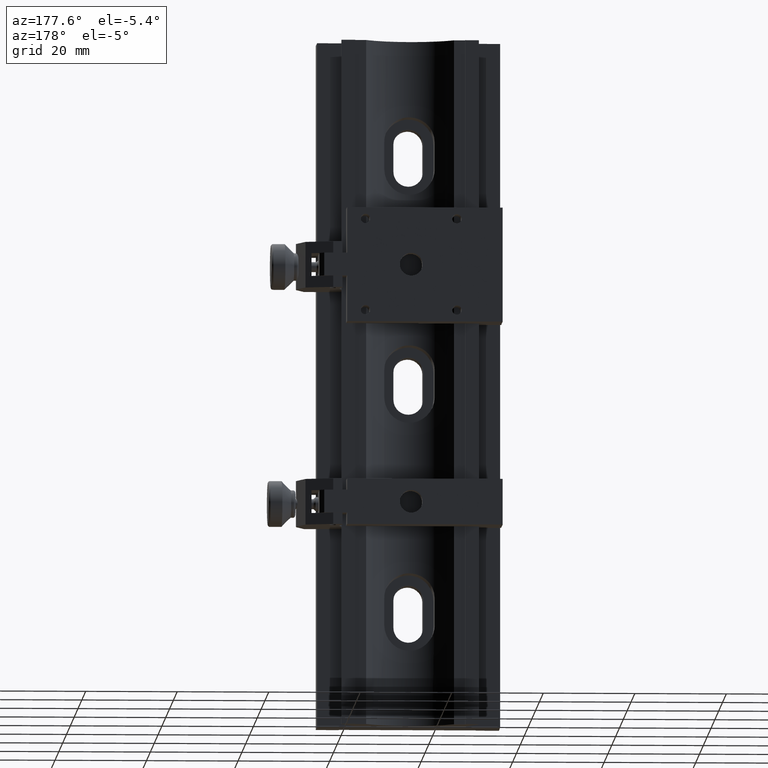
[diagram: clean part render]
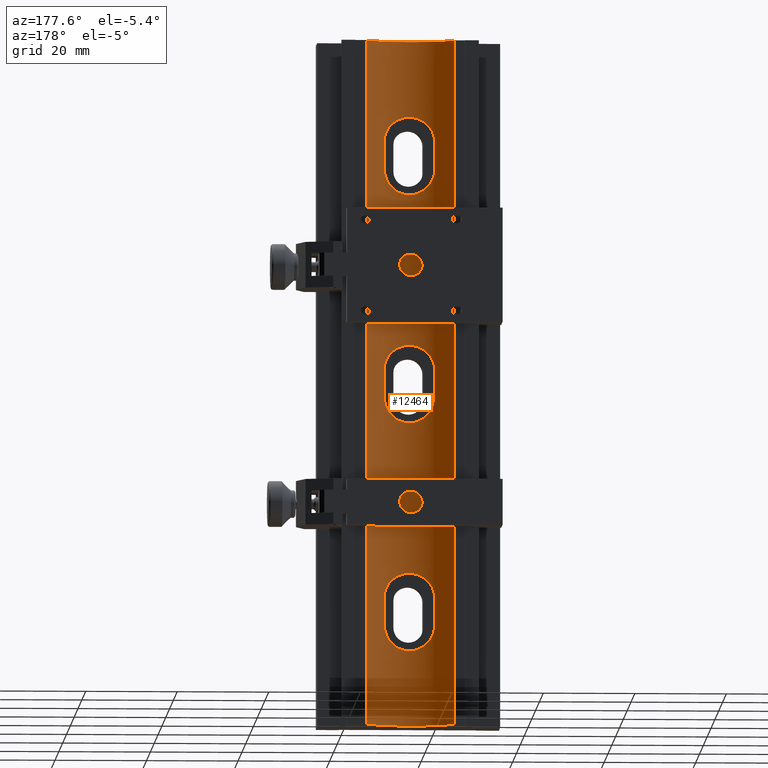
[diagram: same view with one face highlighted and labeled with its STEP entity id]
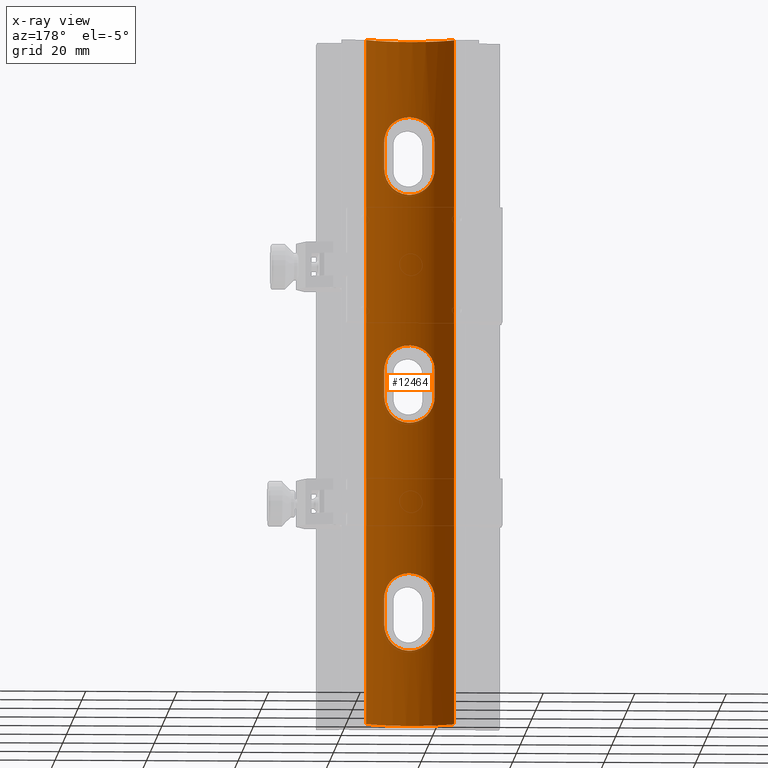
[diagram: x-ray of the same camera — body ghosted, the highlighted face saturated]
A machine part, auxiliary view. The second image highlights one B-rep face of the part: STEP entity #12464.
The next image is the same camera in x-ray: the body ghosted, the highlighted face saturated — about 0% of this face is hidden behind the body in this view.
In plain terms, the highlighted cylindrical surface (partial cylindrical patch) has radius 12.5 mm, axis along (0, 0, -1).
Its self-contained STEP definition (entity closure, byte-faithful):
#2 = CARTESIAN_POINT ( 'NONE',  ( -169.5211503403899940, -1.590734149015810006, 1.000000000000000000 ) ) ;
#158 = CARTESIAN_POINT ( 'NONE',  ( -179.6799290803014628, -1.965239601774940725, -44.07597243337436055 ) ) ;
#198 = CARTESIAN_POINT ( 'NONE',  ( -177.7868507406174388, -2.557015744752593189, -7.757456348123294987 ) ) ;
#255 = CARTESIAN_POINT ( 'NONE',  ( -178.8775979534887597, -2.256005124872849876, -56.92149772594194701 ) ) ;
#361 = CARTESIAN_POINT ( 'NONE',  ( -169.9119420699629472, -1.773930927791316670, 5.036692909408248653 ) ) ;
#409 = EDGE_CURVE ( 'NONE', #19714, #44917, #10962, .T. ) ;
#420 = CARTESIAN_POINT ( 'NONE',  ( -180.3415501845765903, -1.677914238363681809, -45.59338185077520933 ) ) ;
#526 = CARTESIAN_POINT ( 'NONE',  ( -176.4391578881346163, -2.785836704039435396, -58.31730276081491127 ) ) ;
#671 = CARTESIAN_POINT ( 'NONE',  ( -171.9526013578660582, -2.483271397003151471, 42.43556750264885125 ) ) ;
#692 = CARTESIAN_POINT ( 'NONE',  ( -171.1989398613607136, -2.267064774203340072, -43.04500240689350221 ) ) ;
#708 = CARTESIAN_POINT ( 'NONE',  ( -179.5977569189805081, -1.997817323643465093, 56.05036719337295636 ) ) ;
#723 = CARTESIAN_POINT ( 'NONE',  ( -175.9376337108088819, -2.865762486325401426, -75.00000000000000000 ) ) ;
#781 = CARTESIAN_POINT ( 'NONE',  ( -179.5091789160126723, -2.032459165168441384, -56.17943030688885386 ) ) ;
#898 = CARTESIAN_POINT ( 'NONE',  ( -172.1025574438639865, -2.521228644384339912, 7.665184246721532091 ) ) ;
#938 = CARTESIAN_POINT ( 'NONE',  ( -171.1268526425036214, -2.243660479185429324, 43.11612380962997548 ) ) ;
#955 = CARTESIAN_POINT ( 'NONE',  ( -170.0022204363862386, -1.813972075007852292, -44.74983546583662530 ) ) ;
#973 = CARTESIAN_POINT ( 'NONE',  ( -178.9884054575607308, -2.219565529446501539, 56.80953943816579255 ) ) ;
#975 = ORIENTED_EDGE ( 'NONE', *, *, #24677, .F. ) ;
#997 = CARTESIAN_POINT ( 'NONE',  ( -170.5572106192113608, -2.041652859708545265, -6.214235206125524158 ) ) ;
#1049 = CARTESIAN_POINT ( 'NONE',  ( -179.9604343699984099, -1.848671185631767244, -55.42085799203724150 ) ) ;
#1129 = CARTESIAN_POINT ( 'NONE',  ( -169.9441928123790149, -1.788306366908576805, -55.11532505550157879 ) ) ;
#1151 = CARTESIAN_POINT ( 'NONE',  ( -170.0917205505643892, -1.853107094330909144, 5.446065375887284787 ) ) ;
#1191 = CARTESIAN_POINT ( 'NONE',  ( -169.5211503403899940, -1.590734149015819554, 47.00000000000000000 ) ) ;
#1215 = CARTESIAN_POINT ( 'NONE',  ( -171.5086847209992982, -2.362087976283687052, -42.76673755632405260 ) ) ;
#1231 = CARTESIAN_POINT ( 'NONE',  ( -178.6008214657105384, -2.342856275974773972, 57.17945056924669700 ) ) ;
#1463 = CARTESIAN_POINT ( 'NONE',  ( -169.9158702919019674, -1.775699941259540005, 44.95375136140157224 ) ) ;
#1482 = CARTESIAN_POINT ( 'NONE',  ( -171.7169568903038055, -2.421784142364137971, -42.59954454378155475 ) ) ;
#1485 = ORIENTED_EDGE ( 'NONE', *, *, #8104, .F. ) ;
#1498 = CARTESIAN_POINT ( 'NONE',  ( -178.0896993229111445, -2.483271397003751435, 57.56443249735308143 ) ) ;
#1718 = CARTESIAN_POINT ( 'NONE',  ( -169.5527210076561744, -1.607339880320182379, 46.30831079553367857 ) ) ;
#1738 = CARTESIAN_POINT ( 'NONE',  ( -170.5331217657056584, -2.032459165524875822, -43.82056969178445627 ) ) ;
#1755 = CARTESIAN_POINT ( 'NONE',  ( -173.0493297774072516, -2.709356159544725084, 58.13476679220100607 ) ) ;
#1774 = CARTESIAN_POINT ( 'NONE',  ( -169.8162844576067414, -1.730741643998848334, -4.786732988066519034 ) ) ;
#1931 = CARTESIAN_POINT ( 'NONE',  ( -180.3052670605817411, -1.693999201217568196, 4.528677807006900480 ) ) ;
#1965 = CARTESIAN_POINT ( 'NONE',  ( -178.0684247596673515, -2.488638330430568590, 42.42133697533588332 ) ) ;
#1999 = CARTESIAN_POINT ( 'NONE',  ( -170.9468182808820984, -2.184691316086200263, 56.70367356172353368 ) ) ;
#2015 = CARTESIAN_POINT ( 'NONE',  ( -169.5574928365481355, -1.608761094449209450, -3.730966533491836046 ) ) ;
#2234 = CARTESIAN_POINT ( 'NONE',  ( -177.8879277336606322, -2.532615377360871722, 42.30598747285334582 ) ) ;
#2264 = CARTESIAN_POINT ( 'NONE',  ( -172.9723885907461636, -2.696745466384602441, 58.10426851655221725 ) ) ;
#2306 = VERTEX_POINT ( 'NONE', #11810 ) ;
#2444 = CARTESIAN_POINT ( 'NONE',  ( -179.7791666523025071, -1.925161835142053857, 5.764773059762528185 ) ) ;
#2485 = CARTESIAN_POINT ( 'NONE',  ( -179.4021530294894546, -2.073454927217462718, 43.67362968655860556 ) ) ;
#2519 = CARTESIAN_POINT ( 'NONE',  ( -170.6401476507718371, -2.073454927022084782, 56.32637031275810102 ) ) ;
#2698 = CARTESIAN_POINT ( 'NONE',  ( -180.5211503403900224, -1.590734149015829990, 3.000000000000000000 ) ) ;
#2734 = CARTESIAN_POINT ( 'NONE',  ( -179.5274443966563638, -2.025356695678675045, 43.84656256568157318 ) ) ;
#2853 = CARTESIAN_POINT ( 'NONE',  ( -169.5211503403899940, -1.590734149015819554, -53.00000000000000000 ) ) ;
#3021 = CARTESIAN_POINT ( 'NONE',  ( -169.9512821306611556, -1.791455062565684653, 55.13227161379114705 ) ) ;
#3330 = CARTESIAN_POINT ( 'NONE',  ( -179.8356959302180940, -1.901580856105069772, -44.33951845710798523 ) ) ;
#3341 = CARTESIAN_POINT ( 'NONE',  ( -173.1984161571619438, -2.766094262694085870, 75.00000000000000000 ) ) ;
#3431 = CARTESIAN_POINT ( 'NONE',  ( -174.3386316605714796, -2.866169791866743921, -58.50092790832866996 ) ) ;
#3585 = CARTESIAN_POINT ( 'NONE',  ( -178.1339800224131125, -2.471972979470078435, -42.46559635564317148 ) ) ;
#3597 = CARTESIAN_POINT ( 'NONE',  ( -174.1054003815262661, -2.865681892106227480, 75.00000000000000000 ) ) ;
#3650 = ORIENTED_EDGE ( 'NONE', *, *, #23390, .F. ) ;
#3673 = CARTESIAN_POINT ( 'NONE',  ( -177.6887172169923303, -2.577988644210531977, -57.81061958954602886 ) ) ;
#3856 = CARTESIAN_POINT ( 'NONE',  ( -178.3253852729905020, -2.421127235450221349, -42.60248835313328897 ) ) ;
#3956 = CARTESIAN_POINT ( 'NONE',  ( -178.0784735598863051, -2.486108446419920348, -57.57195923115429537 ) ) ;
#4052 = ORIENTED_EDGE ( 'NONE', *, *, #30421, .F. ) ;
#4123 = CARTESIAN_POINT ( 'NONE',  ( -177.3303876451084875, -2.650635157852757384, -42.00808022209175618 ) ) ;
#4160 = CARTESIAN_POINT ( 'NONE',  ( -174.3004118603322752, -2.846287782789690191, -8.455671095539308624 ) ) ;
#4218 = CARTESIAN_POINT ( 'NONE',  ( -178.7754771466328236, -2.288697047183649858, -57.01994743124642895 ) ) ;
#4276 = CARTESIAN_POINT ( 'NONE',  ( -184.6258366965392952, 1.634238011305999994, -75.00000000000000000 ) ) ;
#4301 = VERTEX_POINT ( 'NONE', #36175 ) ;
#4323 = CARTESIAN_POINT ( 'NONE',  ( -169.5934150438910706, -1.625923941630455394, 3.906824568794195596 ) ) ;
#4378 = CARTESIAN_POINT ( 'NONE',  ( -180.3856218829057525, -1.657157074233241101, -45.77301858196292983 ) ) ;
#4413 = CARTESIAN_POINT ( 'NONE',  ( -178.3860861150928372, -2.408246104733510418, -7.365286242713302123 ) ) ;
#4466 = CARTESIAN_POINT ( 'NONE',  ( -175.7274057483950287, -2.850282514921846477, -58.46649773888452728 ) ) ;
#4592 = CARTESIAN_POINT ( 'NONE',  ( -169.5211503403899940, -1.590734149015819554, -47.00000000000000000 ) ) ;
#4597 = B_SPLINE_CURVE_WITH_KNOTS ( 'NONE', 3,
 ( #48893, #37296, #32818, #13270, #12741, #12488, #8781, #28601, #44675, #24891, #40986, #1129, #8531, #16960, #17215, #29381, #9320, #45201, #33071, #25423, #21451, #5351, #12996, #29114, #37559, #33603, #49676, #43537, #24283, #43794, #51698, #32455, #20576, #48261, #24547, #28506, #44582, #36670, #23759, #24010, #15541, #8444, #44311, #35889, #35621, #31662, #12114, #16072, #27456, #47748, #40634, #19535, #15810, #32194, #51967, #39834, #11598, #48534, #3431, #31926, #4466, #7389, #526, #40372, #40107, #12392, #16604, #48005, #27706, #19788, #32721, #48799, #3673, #7650, #11866, #27969, #44045, #28227, #7899, #3956, #20061, #23510, #39588, #36151, #52228, #8175, #4218, #20324, #255, #36410, #16329, #49322, #5535, #17128, #49059, #12909, #781, #29798, #5004, #12659, #25071, #29296, #20850, #13180, #16873, #49846, #33244, #13690, #1049, #41676, #45374, #21113, #8698, #45879, #34019, #21644, #29554, #4745 ),
 .UNSPECIFIED., .F., .F.,
 ( 4, 2, 2, 1, 1, 1, 2, 2, 2, 2, 1, 1, 1, 1, 2, 2, 2, 2, 2, 1, 1, 2, 2, 2, 2, 1, 1, 1, 2, 2, 2, 2, 1, 1, 2, 2, 2, 2, 2, 1, 1, 1, 2, 2, 2, 2, 1, 1, 1, 2, 2, 2, 2, 1, 1, 1, 2, 2, 2, 2, 2, 1, 1, 1, 2, 2, 2, 2, 1, 1, 2, 2, 4 ),
 ( 0.000000000000000000, 0.06250000000016878166, 0.09375000000025272839, 0.1093750000002940287, 0.1171875000003159695, 0.1210937500003274464, 0.1230468750003326783, 0.1250000000003378964, 0.1562500000004525269, 0.1718750000005098144, 0.1796875000005395961, 0.1835937500005560552, 0.1855468750005642709, 0.1865234375005683787, 0.1870117187505715706, 0.1875000000005747902, 0.2187500000005968004, 0.2343750000006082357, 0.2421875000006139533, 0.2460937500006171175, 0.2480468750006175616, 0.2490234375006163681, 0.2500000000006151746, 0.2812500000006247780, 0.2968750000006317724, 0.3046875000006348810, 0.3085937500006341039, 0.3105468750006312173, 0.3115234375006298295, 0.3125000000006283862, 0.3437500000005401790, 0.3593750000004981016, 0.3671875000004767853, 0.3710937500004640732, 0.3730468750004577450, 0.3750000000004514167, 0.5000000000000863754, 0.5624999999999014122, 0.5937499999998089306, 0.6093749999997628564, 0.6171874999997397637, 0.6210937499997282174, 0.6230468749997225553, 0.6249999999997167821, 0.6562499999996280753, 0.6718749999995857758, 0.6796874999995665689, 0.6835937499995572431, 0.6855468749995503597, 0.6865234374995472511, 0.6874999999995441424, 0.7187499999995576871, 0.7343749999995641264, 0.7421874999995661248, 0.7460937499995689004, 0.7480468749995712319, 0.7490234374995707878, 0.7499999999995703437, 0.7812499999995251576, 0.7968749999995011768, 0.8046874999994891864, 0.8085937499994851896, 0.8105468749994862998, 0.8115234374994853006, 0.8120117187494848565, 0.8124999999994844124, 0.8437499999995542455, 0.8593749999995896616, 0.8671874999996074251, 0.8710937499996151967, 0.8730468749996197486, 0.8749999999996241895, 1.000000000000000000 ),
 .UNSPECIFIED. ) ;
#4617 = CARTESIAN_POINT ( 'NONE',  ( -170.4497355354051251, -1.999857390814077096, 43.94186717226791217 ) ) ;
#4632 = CARTESIAN_POINT ( 'NONE',  ( -171.9738759210992214, -2.488638330427946688, -42.42133697534484327 ) ) ;
#4655 = CARTESIAN_POINT ( 'NONE',  ( -180.2159734285216643, -1.735515368826099802, 54.81100958184590155 ) ) ;
#4679 = CARTESIAN_POINT ( 'NONE',  ( -172.2555725628152743, -2.559859430593812046, -7.767626912891274493 ) ) ;
#4745 = CARTESIAN_POINT ( 'NONE',  ( -180.5211503403900224, -1.590734149015829990, -53.00000000000000000 ) ) ;
#4869 = CARTESIAN_POINT ( 'NONE',  ( -169.5211503403899940, -1.590734149015819554, -49.00000000000000000 ) ) ;
#4891 = CARTESIAN_POINT ( 'NONE',  ( -171.0224210647125744, -2.209003973992106573, 43.22361886262984854 ) ) ;
#4910 = CARTESIAN_POINT ( 'NONE',  ( -172.9050499737441839, -2.685348436850733211, -41.92336493519851359 ) ) ;
#4927 = CARTESIAN_POINT ( 'NONE',  ( -174.3148949324774435, -2.850282514908883957, 58.46649773889645019 ) ) ;
#4947 = CARTESIAN_POINT ( 'NONE',  ( -170.3558233265502793, -1.963022944875429276, -5.918459346024998347 ) ) ;
#5004 = CARTESIAN_POINT ( 'NONE',  ( -179.5523824343560477, -2.015616892709511276, -56.11739460993196360 ) ) ;
#5121 = CARTESIAN_POINT ( 'NONE',  ( -174.2907871692311801, -2.845709232771078234, 8.454346703993248724 ) ) ;
#5162 = CARTESIAN_POINT ( 'NONE',  ( -174.3386316606417381, -2.866169791871483685, 41.49907209167140110 ) ) ;
#5179 = CARTESIAN_POINT ( 'NONE',  ( -169.9542810272474185, -1.792785514479733555, -44.86062287510440427 ) ) ;
#5194 = CARTESIAN_POINT ( 'NONE',  ( -179.5323207921339872, -2.023489590309405450, 56.14777176234999700 ) ) ;
#5209 = CARTESIAN_POINT ( 'NONE',  ( -179.4945399989882162, -2.073823924379119443, -75.00000000000000000 ) ) ;
#5252 = EDGE_LOOP ( 'NONE', ( #34266, #11573, #17916, #50230 ) ) ;
#5351 = CARTESIAN_POINT ( 'NONE',  ( -170.4497355353930743, -1.999857390809941071, -56.05813282771414663 ) ) ;
#5369 = CARTESIAN_POINT ( 'NONE',  ( -169.5660287262729469, -1.612630314467968562, 3.724695974314017555 ) ) ;
#5411 = CARTESIAN_POINT ( 'NONE',  ( -171.8572791249275156, -2.458749807136987098, 42.50086908022952059 ) ) ;
#5432 = CARTESIAN_POINT ( 'NONE',  ( -171.4362017221649523, -2.340704984869662830, -42.82768574051215182 ) ) ;
#5448 = CARTESIAN_POINT ( 'NONE',  ( -177.2725248131858962, -2.661432234454832013, 58.01840434500639532 ) ) ;
#5535 = CARTESIAN_POINT ( 'NONE',  ( -179.0954824007157526, -2.184691315834477177, -56.70367356090444844 ) ) ;
#5684 = CARTESIAN_POINT ( 'NONE',  ( -170.5099798883917970, -2.023489590206941635, 43.85222823802816094 ) ) ;
#5704 = CARTESIAN_POINT ( 'NONE',  ( -169.5211503403899940, -1.590734149015819554, -47.00000000000000000 ) ) ;
#5721 = CARTESIAN_POINT ( 'NONE',  ( -173.2037006188627686, -2.733341560843864926, 58.19252705285790483 ) ) ;
#5903 = CARTESIAN_POINT ( 'NONE',  ( -179.9466030952154085, -1.854524549603753014, 5.449178497325835480 ) ) ;
#5942 = CARTESIAN_POINT ( 'NONE',  ( -177.0699120900420667, -2.696745466385424006, 41.89573148345108677 ) ) ;
#5975 = CARTESIAN_POINT ( 'NONE',  ( -172.7448893440919448, -2.657712240131596904, 58.00952569177879781 ) ) ;
#6151 = CARTESIAN_POINT ( 'NONE',  ( -175.7418888204434211, -2.846287782789943321, 8.455671095500148837 ) ) ;
#6186 = CARTESIAN_POINT ( 'NONE',  ( -179.5873831308028059, -2.001891995479919029, 43.93413506757993048 ) ) ;
#6218 = CARTESIAN_POINT ( 'NONE',  ( -171.1647027272289563, -2.256005124855536614, 56.92149772588044954 ) ) ;
#6413 = CARTESIAN_POINT ( 'NONE',  ( -176.8010659218135174, -2.739617199801270608, 8.207225577403843175 ) ) ;
#6449 = CARTESIAN_POINT ( 'NONE',  ( -176.7056101426245789, -2.751781644784317304, 41.76347360471042691 ) ) ;
#6481 = CARTESIAN_POINT ( 'NONE',  ( -170.1205802783472336, -1.865293960999061307, 55.49847643089005089 ) ) ;
#6534 = FACE_OUTER_BOUND ( 'NONE', #11357, .T. ) ;
#6705 = CARTESIAN_POINT ( 'NONE',  ( -180.5211503403900508, -1.590734149015828436, 46.32133160310387154 ) ) ;
#6737 = CARTESIAN_POINT ( 'NONE',  ( -171.1499701084943013, -2.251213093772553631, 56.90691843415073237 ) ) ;
#6794 = CARTESIAN_POINT ( 'NONE',  ( -175.9369002992537219, -2.865842085281771645, 75.00000000000000000 ) ) ;
#6859 = B_SPLINE_CURVE_WITH_KNOTS ( 'NONE', 3,
 ( #36159, #2, #15548, #11602 ),
 .UNSPECIFIED., .F., .F.,
 ( 4, 4 ),
 ( 0.000000000000000000, 1.000000000000000000 ),
 .UNSPECIFIED. ) ;
#7294 = CARTESIAN_POINT ( 'NONE',  ( -178.1850215557841466, -2.458749807156604295, -42.50086908018177922 ) ) ;
#7389 = CARTESIAN_POINT ( 'NONE',  ( -176.2609000364708720, -2.804773265380535729, -58.36151743900072120 ) ) ;
#7546 = CARTESIAN_POINT ( 'NONE',  ( -178.9219192564422087, -2.241537958815216669, -43.12262122498189854 ) ) ;
#7558 = B_SPLINE_CURVE_WITH_KNOTS ( 'NONE', 3,
 ( #13335, #17294, #27935, #29189 ),
 .UNSPECIFIED., .F., .F.,
 ( 4, 4 ),
 ( 0.000000000000000000, 1.000000000000000000 ),
 .UNSPECIFIED. ) ;
#7591 = CARTESIAN_POINT ( 'NONE',  ( -180.2541785997904356, -1.717689785423812010, -4.695360783316592013 ) ) ;
#7633 = EDGE_CURVE ( 'NONE', #31421, #4301, #19732, .T. ) ;
#7650 = CARTESIAN_POINT ( 'NONE',  ( -177.7681537513950332, -2.560390484353752605, -57.76577770885585750 ) ) ;
#7804 = CARTESIAN_POINT ( 'NONE',  ( -180.1127784529198266, -1.781781141688272507, -44.92022379813637656 ) ) ;
#7817 = CARTESIAN_POINT ( 'NONE',  ( -166.0027742900654459, 0.9303221869529608723, 75.00000000000001421 ) ) ;
#7839 = CARTESIAN_POINT ( 'NONE',  ( -170.8860431594908960, -2.162591605678158668, -6.630843004979551480 ) ) ;
#7899 = CARTESIAN_POINT ( 'NONE',  ( -178.0684247596823297, -2.488638330427339618, -57.57866302465414066 ) ) ;
#8082 = CARTESIAN_POINT ( 'NONE',  ( -179.0809866770845815, -2.188338922555741028, -43.28903109974702090 ) ) ;
#8104 = EDGE_CURVE ( 'NONE', #45282, #2306, #49834, .T. ) ;
#8118 = CARTESIAN_POINT ( 'NONE',  ( -175.3912326246698967, -2.861583397452786670, -8.490570655172550829 ) ) ;
#8136 = CARTESIAN_POINT ( 'NONE',  ( -169.5211503403899940, -1.590734149015829990, 53.00000000000000000 ) ) ;
#8175 = CARTESIAN_POINT ( 'NONE',  ( -178.7184203141890464, -2.306404093846886383, -57.07218742933874722 ) ) ;
#8341 = CARTESIAN_POINT ( 'NONE',  ( -179.5925651453829062, -1.999857390811663693, -43.94186717227986350 ) ) ;
#8444 = CARTESIAN_POINT ( 'NONE',  ( -171.8572791248331555, -2.458749807110203633, -57.49913091970451262 ) ) ;
#8468 = CARTESIAN_POINT ( 'NONE',  ( -180.5211503403900224, -1.590734149015829990, 51.00000000000000000 ) ) ;
#8531 = CARTESIAN_POINT ( 'NONE',  ( -170.0091417616870331, -1.817147848821992318, -55.27042174763485605 ) ) ;
#8609 = CARTESIAN_POINT ( 'NONE',  ( -170.4652814083666215, -2.005960302360800807, -43.91874566361764920 ) ) ;
#8627 = CARTESIAN_POINT ( 'NONE',  ( -178.3919555670977104, -2.402673381221974935, 57.34691099864696895 ) ) ;
#8647 = CARTESIAN_POINT ( 'NONE',  ( -175.7515135120672767, -2.845709232740736283, -8.454346703953762088 ) ) ;
#8698 = CARTESIAN_POINT ( 'NONE',  ( -180.0802412660185894, -1.796233506558300830, -55.15770668192320869 ) ) ;
#8781 = CARTESIAN_POINT ( 'NONE',  ( -169.8263272522129625, -1.735515368825744753, -54.81100958171861492 ) ) ;
#8843 = CARTESIAN_POINT ( 'NONE',  ( -169.5211503403899940, -1.590734149015819110, 46.66018992104922347 ) ) ;
#8859 = CARTESIAN_POINT ( 'NONE',  ( -170.8050582599586562, -2.134347787446079892, -43.46358038894055653 ) ) ;
#8879 = CARTESIAN_POINT ( 'NONE',  ( -175.7036690200859539, -2.866169791884070062, 58.50092790832844969 ) ) ;
#9075 = CARTESIAN_POINT ( 'NONE',  ( -172.8117239349999181, -2.669244609327662943, 8.037530285714948874 ) ) ;
#9103 = CARTESIAN_POINT ( 'NONE',  ( -180.5211503403900224, -1.590734149015839538, -51.00000000000000000 ) ) ;
#9113 = CARTESIAN_POINT ( 'NONE',  ( -172.8841616606106300, -2.681741940641068744, 41.93212217411116427 ) ) ;
#9135 = CARTESIAN_POINT ( 'NONE',  ( -172.1543729469931066, -2.532615377336119522, -42.30598747293071682 ) ) ;
#9150 = CARTESIAN_POINT ( 'NONE',  ( -179.2900312841293839, -2.114839906714559792, 56.46908031490182367 ) ) ;
#9320 = CARTESIAN_POINT ( 'NONE',  ( -170.3246441117086363, -1.950011370996534099, -55.86270344482339567 ) ) ;
#9342 = CARTESIAN_POINT ( 'NONE',  ( -172.7315129072843831, -2.654549074504254591, 8.001573577913372759 ) ) ;
#9380 = CARTESIAN_POINT ( 'NONE',  ( -171.6503451139595029, -2.402673381299324618, 42.65308900113808477 ) ) ;
#9401 = CARTESIAN_POINT ( 'NONE',  ( -170.0280585407921592, -1.825281099111953909, -44.69331312994651739 ) ) ;
#9416 = CARTESIAN_POINT ( 'NONE',  ( -179.5890967419601623, -2.001219458390092409, 56.06331117969914146 ) ) ;
#9587 = CARTESIAN_POINT ( 'NONE',  ( -179.9062392579340610, -1.871761175045051573, 5.528762303776706410 ) ) ;
#9628 = CARTESIAN_POINT ( 'NONE',  ( -170.9230306255976188, -2.175172967689722014, 43.33143189912014037 ) ) ;
#9647 = CARTESIAN_POINT ( 'NONE',  ( -171.2668235336756482, -2.288697047046682531, -42.98005256919776684 ) ) ;
#9663 = CARTESIAN_POINT ( 'NONE',  ( -173.6031427927283914, -2.785836704027694566, 58.31730276083759890 ) ) ;
#9690 = CARTESIAN_POINT ( 'NONE',  ( -170.5071131096443935, -2.022365367783473200, -6.143507448402249160 ) ) ;
#9932 = CARTESIAN_POINT ( 'NONE',  ( -169.5211503403899940, -1.590734149015829990, 53.00000000000000000 ) ) ;
#10150 = CARTESIAN_POINT ( 'NONE',  ( -178.0850769119461461, -2.484440400602472732, 42.43246552144174188 ) ) ;
#10184 = CARTESIAN_POINT ( 'NONE',  ( -170.4549175499830937, -2.001891995482069309, 56.06586493242888736 ) ) ;
#10392 = CARTESIAN_POINT ( 'NONE',  ( -178.7184203146274228, -2.306404093725527460, 42.92781257106015147 ) ) ;
#10427 = CARTESIAN_POINT ( 'NONE',  ( -170.0280585407508340, -1.825281099095574122, 55.30668686996384764 ) ) ;
#10664 = CARTESIAN_POINT ( 'NONE',  ( -180.0684519782832353, -1.801453747074537315, 44.81471978643199350 ) ) ;
#10697 = CARTESIAN_POINT ( 'NONE',  ( -171.2668235339059777, -2.288697047117616901, 57.01994743101914764 ) ) ;
#10755 = CARTESIAN_POINT ( 'NONE',  ( -184.0390542892048700, 0.9297553885868481416, 75.00000000000000000 ) ) ;
#10918 = CARTESIAN_POINT ( 'NONE',  ( -180.0400802443524242, -1.813972075025985786, 44.74983546574363658 ) ) ;
#10948 = CARTESIAN_POINT ( 'NONE',  ( -169.9620594147503994, -1.796233506552664450, 55.15770668189714598 ) ) ;
#10962 = B_SPLINE_CURVE_WITH_KNOTS ( 'NONE', 3,
 ( #35286, #7817, #27363, #43702, #51881, #35029, #27627, #3341, #3597, #6794, #15732, #27116, #14692, #51110, #35545, #31843, #10755, #43452 ),
 .UNSPECIFIED., .F., .F.,
 ( 4, 2, 2, 2, 2, 2, 2, 2, 4 ),
 ( 0.000000000000000000, 0.1250000000000000000, 0.2500000000000000000, 0.3750000000000000000, 0.5000000000000000000, 0.6250000000000000000, 0.7500000000000000000, 0.8750000000000000000, 1.000000000000000000 ),
 .UNSPECIFIED. ) ;
#11019 = EDGE_CURVE ( 'NONE', #37527, #45282, #15551, .T. ) ;
#11271 = CARTESIAN_POINT ( 'NONE',  ( -169.5211503403899940, -1.590734149015819554, -47.00000000000000000 ) ) ;
#11357 = EDGE_LOOP ( 'NONE', ( #3650, #25625, #23292, #42950 ) ) ;
#11504 = CARTESIAN_POINT ( 'NONE',  ( -180.1574220297787576, -1.761851020816152413, -45.03206814684372716 ) ) ;
#11541 = CARTESIAN_POINT ( 'NONE',  ( -170.7173403811204082, -2.101638391285803209, -6.425761539410820511 ) ) ;
#11573 = ORIENTED_EDGE ( 'NONE', *, *, #32347, .F. ) ;
#11598 = CARTESIAN_POINT ( 'NONE',  ( -172.8921079763161686, -2.683119780792658560, -58.07122474195086426 ) ) ;
#11602 = CARTESIAN_POINT ( 'NONE',  ( -169.5211503403899940, -1.590734149015819554, -3.000000000000000000 ) ) ;
#11762 = CARTESIAN_POINT ( 'NONE',  ( -178.0985776035216190, -2.481017799867795137, -42.44155079271405384 ) ) ;
#11803 = CARTESIAN_POINT ( 'NONE',  ( -173.7624053708662188, -2.803503096713536813, -8.357092074802597637 ) ) ;
#11810 = CARTESIAN_POINT ( 'NONE',  ( -169.5211503403899940, -1.590734149015829990, 53.00000000000000000 ) ) ;
#11866 = CARTESIAN_POINT ( 'NONE',  ( -177.8879277337947826, -2.532615377332459339, -57.69401252706449412 ) ) ;
#12018 = CARTESIAN_POINT ( 'NONE',  ( -179.9617255582107873, -1.848435447235271978, -44.57662185710430691 ) ) ;
#12053 = CARTESIAN_POINT ( 'NONE',  ( -180.1303586108096795, -1.773930927794630463, -5.036692909444990818 ) ) ;
#12114 = CARTESIAN_POINT ( 'NONE',  ( -171.9526013578684456, -2.483271397003599112, -57.56443249735276879 ) ) ;
#12298 = CARTESIAN_POINT ( 'NONE',  ( -179.1192700554583155, -2.175172967593590023, -43.33143189942767037 ) ) ;
#12392 = CARTESIAN_POINT ( 'NONE',  ( -176.9929709033982874, -2.709356159547943399, -58.13476679219109400 ) ) ;
#12464 = ADVANCED_FACE ( 'NONE', ( #6534, #31067, #22653, #50342 ), #30556, .F. ) ;
#12488 = CARTESIAN_POINT ( 'NONE',  ( -169.7819539691682849, -1.715277133798551068, -54.67619469743747374 ) ) ;
#12563 = CARTESIAN_POINT ( 'NONE',  ( -170.4591477374333692, -2.003552678053394764, -43.92784294827873737 ) ) ;
#12581 = CARTESIAN_POINT ( 'NONE',  ( -179.5925651453655973, -1.999857390817372682, 56.05813282774599315 ) ) ;
#12599 = CARTESIAN_POINT ( 'NONE',  ( -171.4099925527729908, -2.367823010051099519, -75.00000000000000000 ) ) ;
#12604 = CARTESIAN_POINT ( 'NONE',  ( -176.8110526201653556, -2.741635453691662061, -8.213316130041068419 ) ) ;
#12659 = CARTESIAN_POINT ( 'NONE',  ( -179.5642360652372531, -2.010975466903268227, -56.10010944344352168 ) ) ;
#12741 = CARTESIAN_POINT ( 'NONE',  ( -169.7007504961592304, -1.677914238363731325, -54.40661814906191296 ) ) ;
#12765 = CARTESIAN_POINT ( 'NONE',  ( -170.5522448246628642, -2.040101748974450402, 6.210999343413229568 ) ) ;
#12801 = CARTESIAN_POINT ( 'NONE',  ( -169.7007504961970312, -1.677914238363727106, 45.59338185079872829 ) ) ;
#12819 = CARTESIAN_POINT ( 'NONE',  ( -172.9723885907353065, -2.696745466385587431, -41.89573148345214548 ) ) ;
#12838 = CARTESIAN_POINT ( 'NONE',  ( -177.1581390201647537, -2.681741940642488053, 58.06787782589081104 ) ) ;
#12850 = CARTESIAN_POINT ( 'NONE',  ( -174.1046669699711060, -2.865761491062598143, -75.00000000000000000 ) ) ;
#12909 = CARTESIAN_POINT ( 'NONE',  ( -179.4491455261218391, -2.055594378742725326, -56.26306128091552239 ) ) ;
#12996 = CARTESIAN_POINT ( 'NONE',  ( -170.4532039388084854, -2.001219458386091610, -56.06331117968214528 ) ) ;
#13058 = CARTESIAN_POINT ( 'NONE',  ( -172.5955436361194018, -2.628348269104387569, 42.06301791470709617 ) ) ;
#13077 = CARTESIAN_POINT ( 'NONE',  ( -170.1205802784148204, -1.865293961023747560, -44.50152356897731920 ) ) ;
#13097 = CARTESIAN_POINT ( 'NONE',  ( -178.1850215559976220, -2.458749807097887707, 57.49913091966899970 ) ) ;
#13113 = CARTESIAN_POINT ( 'NONE',  ( -166.0030090036732702, 0.9300403931296347126, -75.00000000000000000 ) ) ;
#13180 = CARTESIAN_POINT ( 'NONE',  ( -179.5874304861918631, -2.001873405599169597, -56.06579320300820513 ) ) ;
#13270 = CARTESIAN_POINT ( 'NONE',  ( -169.6566787978331377, -1.657157074233276184, -54.22698141785750181 ) ) ;
#13288 = CARTESIAN_POINT ( 'NONE',  ( -172.2554499402449437, -2.557015744771279575, 7.757456348171339222 ) ) ;
#13325 = CARTESIAN_POINT ( 'NONE',  ( -169.8263272522399632, -1.735515368825735649, 45.18899041820568385 ) ) ;
#13335 = CARTESIAN_POINT ( 'NONE',  ( -184.6258366965392952, 1.634238011305999994, 75.00000000000000000 ) ) ;
#13344 = CARTESIAN_POINT ( 'NONE',  ( -169.9738487024755500, -1.801453747065016708, -44.81471978648099963 ) ) ;
#13362 = CARTESIAN_POINT ( 'NONE',  ( -179.7176565687680068, -1.950011371108570479, 55.86270344531989451 ) ) ;
#13550 = CARTESIAN_POINT ( 'NONE',  ( -180.0591534727106762, -1.805604743043085270, 5.208347393270801540 ) ) ;
#13586 = CARTESIAN_POINT ( 'NONE',  ( -170.4532039388143971, -2.001219458388118433, 43.93668882030905820 ) ) ;
#13605 = CARTESIAN_POINT ( 'NONE',  ( -172.9175398754099149, -2.687487688587529178, -41.91817320118229873 ) ) ;
#13621 = CARTESIAN_POINT ( 'NONE',  ( -174.6687356196304108, -2.865554768631398908, 58.49952850386122094 ) ) ;
#13635 = CARTESIAN_POINT ( 'NONE',  ( -176.8431511260910725, -2.766174984412098858, -75.00000000000000000 ) ) ;
#13690 = CARTESIAN_POINT ( 'NONE',  ( -179.9217204023447323, -1.865293961037105097, -55.49847643106285489 ) ) ;
#13834 = CARTESIAN_POINT ( 'NONE',  ( -170.0805751227185851, -1.848435447291560063, 44.57662185679967592 ) ) ;
#13866 = CARTESIAN_POINT ( 'NONE',  ( -172.2741469297277774, -2.560390484427820912, 57.76577770905488052 ) ) ;
#14061 = CARTESIAN_POINT ( 'NONE',  ( -175.9243414485348751, -2.834366104253029928, 8.428362593198500008 ) ) ;
#14102 = CARTESIAN_POINT ( 'NONE',  ( -178.8433608193466000, -2.267064774226345225, 43.04500240682288847 ) ) ;
#14134 = CARTESIAN_POINT ( 'NONE',  ( -170.8050582595066658, -2.134347787288541021, 56.53641961052054654 ) ) ;
#14315 = CARTESIAN_POINT ( 'NONE',  ( -179.0368992492278437, -2.203897310568316836, 6.762408087918664101 ) ) ;
#14352 = CARTESIAN_POINT ( 'NONE',  ( -178.9062854659361790, -2.246661002792170070, 43.10695609366899106 ) ) ;
#14392 = CARTESIAN_POINT ( 'NONE',  ( -172.9050499737293194, -2.685348436847804887, 58.07663506479524074 ) ) ;
#14558 = VERTEX_POINT ( 'NONE', #32791 ) ;
#14567 = CARTESIAN_POINT ( 'NONE',  ( -176.9734436540042282, -2.713508325558536605, 8.144979287157774195 ) ) ;
#14600 = CARTESIAN_POINT ( 'NONE',  ( -179.9604343699356832, -1.848671185652410065, 44.57914200783381631 ) ) ;
#14631 = CARTESIAN_POINT ( 'NONE',  ( -171.5086847214736849, -2.362087976421855195, 57.23326244406952412 ) ) ;
#14692 = CARTESIAN_POINT ( 'NONE',  ( -179.4951703267916798, -2.073440700037467277, 75.00000000000000000 ) ) ;
#15071 = CARTESIAN_POINT ( 'NONE',  ( -180.5211503403900224, -1.590734149015829990, -1.000000000000000000 ) ) ;
#15125 = CARTESIAN_POINT ( 'NONE',  ( -179.5831529433423555, -2.003552678055351866, 43.92784294827236380 ) ) ;
#15443 = CARTESIAN_POINT ( 'NONE',  ( -179.6335711889054494, -1.983685528465921388, -44.00389603881902900 ) ) ;
#15541 = CARTESIAN_POINT ( 'NONE',  ( -171.8113867256521985, -2.446580245102961904, -57.46642327047538856 ) ) ;
#15548 = CARTESIAN_POINT ( 'NONE',  ( -169.5211503403899940, -1.590734149015810006, -1.000000000000000000 ) ) ;
#15551 = B_SPLINE_CURVE_WITH_KNOTS ( 'NONE', 3,
 ( #27990, #44606, #8468, #24570 ),
 .UNSPECIFIED., .F., .F.,
 ( 4, 4 ),
 ( 0.000000000000000000, 1.000000000000000000 ),
 .UNSPECIFIED. ) ;
#15687 = CARTESIAN_POINT ( 'NONE',  ( -180.5211503403900224, -1.590734149015829990, -3.000000000000000000 ) ) ;
#15717 = CARTESIAN_POINT ( 'NONE',  ( -180.2603467115741864, -1.715277133798475795, -45.32380530244594752 ) ) ;
#15732 = CARTESIAN_POINT ( 'NONE',  ( -176.8438497094261095, -2.765937898290206753, 75.00000000000000000 ) ) ;
#15754 = CARTESIAN_POINT ( 'NONE',  ( -177.2305767456590502, -2.669244609348548458, -8.037530285761235405 ) ) ;
#15794 = CARTESIAN_POINT ( 'NONE',  ( -180.5211503403900224, -1.590734149015829990, 53.00000000000000000 ) ) ;
#15810 = CARTESIAN_POINT ( 'NONE',  ( -172.7697758675368505, -2.661432234442734579, -58.01840434498093657 ) ) ;
#15978 = CARTESIAN_POINT ( 'NONE',  ( -179.5977569190091572, -1.997817323634074604, -43.94963280667000305 ) ) ;
#16014 = CARTESIAN_POINT ( 'NONE',  ( -176.4656817049264816, -2.787172939600253585, -8.319366321309336954 ) ) ;
#16072 = CARTESIAN_POINT ( 'NONE',  ( -172.1190427191330627, -2.525346004497953434, -57.67606004278068355 ) ) ;
#16231 = CARTESIAN_POINT ( 'NONE',  ( -178.1091008626044072, -2.478340903123920302, -42.44866086230648250 ) ) ;
#16271 = CARTESIAN_POINT ( 'NONE',  ( -174.6633259208398670, -2.861959399846618179, -8.491426974868780064 ) ) ;
#16313 = B_SPLINE_CURVE_WITH_KNOTS ( 'NONE', 3,
 ( #4592, #4869, #39961, #20974 ),
 .UNSPECIFIED., .F., .F.,
 ( 4, 4 ),
 ( 0.000000000000000000, 1.000000000000000000 ),
 .UNSPECIFIED. ) ;
#16329 = CARTESIAN_POINT ( 'NONE',  ( -178.9021651334591922, -2.248006810533349498, -56.89714924206213453 ) ) ;
#16447 = CARTESIAN_POINT ( 'NONE',  ( -169.5211503403899940, -1.590734149015825771, 3.182033822428566250 ) ) ;
#16486 = CARTESIAN_POINT ( 'NONE',  ( -165.4164639842407212, 1.634238011305999994, -75.00000000000000000 ) ) ;
#16510 = CARTESIAN_POINT ( 'NONE',  ( -179.0198796162274277, -2.209003973937957888, -43.22361886279888665 ) ) ;
#16542 = CARTESIAN_POINT ( 'NONE',  ( -181.9320918952929844, -0.8218040769827488212, -75.00000000000000000 ) ) ;
#16547 = CARTESIAN_POINT ( 'NONE',  ( -179.9505801301069141, -1.853107094377564046, -5.446065376086982823 ) ) ;
#16604 = CARTESIAN_POINT ( 'NONE',  ( -177.0699120900480921, -2.696745466386074153, -58.10426851654648317 ) ) ;
#16721 = CARTESIAN_POINT ( 'NONE',  ( -169.7881220809659908, -1.717689785412945369, 4.695360783199285848 ) ) ;
#16760 = CARTESIAN_POINT ( 'NONE',  ( -170.4558504209077796, -2.002257919052667923, 43.93274734115667002 ) ) ;
#16793 = CARTESIAN_POINT ( 'NONE',  ( -178.1091008626612506, -2.478340903108365634, 57.55133913765494924 ) ) ;
#16807 = CARTESIAN_POINT ( 'NONE',  ( -184.6258366965392952, 1.634238011305999994, -75.00000000000000000 ) ) ;
#16812 = CARTESIAN_POINT ( 'NONE',  ( -171.3845762648747666, -2.328039271247416497, -7.141635653950022977 ) ) ;
#16873 = CARTESIAN_POINT ( 'NONE',  ( -179.5873831308011006, -2.001891995480497233, -56.06586493242270564 ) ) ;
#16960 = CARTESIAN_POINT ( 'NONE',  ( -170.0805751224829976, -1.848435447188833125, -55.42337814272008245 ) ) ;
#17021 = CARTESIAN_POINT ( 'NONE',  ( -170.4445437617846153, -1.997817323638203302, 43.94963280664944705 ) ) ;
#17038 = CARTESIAN_POINT ( 'NONE',  ( -169.9620594147590964, -1.796233506556362380, -44.84229331808235486 ) ) ;
#17056 = CARTESIAN_POINT ( 'NONE',  ( -179.1192700548765231, -2.175172967792738721, 56.66856810122070698 ) ) ;
#17072 = CARTESIAN_POINT ( 'NONE',  ( -173.1991493383888496, -2.766175955886620130, -75.00000000000000000 ) ) ;
#17128 = CARTESIAN_POINT ( 'NONE',  ( -179.2372424223878795, -2.134347786911637179, -56.53641960919178899 ) ) ;
#17215 = CARTESIAN_POINT ( 'NONE',  ( -170.2066047504673634, -1.901580856058650015, -55.66048154272093029 ) ) ;
#17238 = CARTESIAN_POINT ( 'NONE',  ( -171.0042215243760211, -2.203493147454698153, 6.761129445817771533 ) ) ;
#17281 = CARTESIAN_POINT ( 'NONE',  ( -171.9331998181568224, -2.478340903118560146, 42.44866086231921543 ) ) ;
#17294 = CARTESIAN_POINT ( 'NONE',  ( -184.6258366965392952, 1.634238011305999994, 25.00000000000000000 ) ) ;
#17303 = CARTESIAN_POINT ( 'NONE',  ( -171.1647027271647801, -2.256005124835332776, -43.07850227418276745 ) ) ;
#17323 = CARTESIAN_POINT ( 'NONE',  ( -178.0915932288535828, -2.482790794716854155, 57.56315660524104771 ) ) ;
#17472 = B_SPLINE_CURVE_WITH_KNOTS ( 'NONE', 3,
 ( #8136, #27410, #43498, #40331 ),
 .UNSPECIFIED., .F., .F.,
 ( 4, 4 ),
 ( 0.000000000000000000, 1.000000000000000000 ),
 .UNSPECIFIED. ) ;
#17477 = VERTEX_POINT ( 'NONE', #17592 ) ;
#17551 = CARTESIAN_POINT ( 'NONE',  ( -170.8150688781068993, -2.137507340717234250, 43.45446941024484033 ) ) ;
#17570 = CARTESIAN_POINT ( 'NONE',  ( -173.0493297773871859, -2.709356159546823850, -41.86523320780676727 ) ) ;
#17585 = CARTESIAN_POINT ( 'NONE',  ( -176.4359425614605072, -2.805921007082561314, 58.36926983937607361 ) ) ;
#17592 = CARTESIAN_POINT ( 'NONE',  ( -169.5211503403899940, -1.590734149015819554, -3.000000000000000000 ) ) ;
#17611 = CARTESIAN_POINT ( 'NONE',  ( -169.5211503403900224, -1.590734149015825771, -3.366890644560935897 ) ) ;
#17776 = CARTESIAN_POINT ( 'NONE',  ( -177.7867281180828343, -2.559859430563974136, 7.767626912836396613 ) ) ;
#17814 = CARTESIAN_POINT ( 'NONE',  ( -171.4414792153355052, -2.342856276051962894, 42.82054943052541063 ) ) ;
#17833 = CARTESIAN_POINT ( 'NONE',  ( -173.7814006443272490, -2.804773265375907876, -41.63848256099508660 ) ) ;
#17847 = CARTESIAN_POINT ( 'NONE',  ( -179.6799290801159827, -1.965239601837249772, 55.92402756691858912 ) ) ;
#17867 = CARTESIAN_POINT ( 'NONE',  ( -169.6685327006897808, -1.661782637164756382, -4.267973387860091172 ) ) ;
#17916 = ORIENTED_EDGE ( 'NONE', *, *, #7633, .T. ) ;
#18027 = CARTESIAN_POINT ( 'NONE',  ( -180.1645550804918230, -1.758799287918540344, 4.956650384457997660 ) ) ;
#18064 = CARTESIAN_POINT ( 'NONE',  ( -178.5336159594851893, -2.362087976370895070, 42.76673755607884431 ) ) ;
#18099 = CARTESIAN_POINT ( 'NONE',  ( -172.0240988259499773, -2.501176516413158968, 57.61179901035868056 ) ) ;
#18334 = CARTESIAN_POINT ( 'NONE',  ( -177.6887172167851645, -2.577988644253307982, 42.18938041033911901 ) ) ;
#18522 = CARTESIAN_POINT ( 'NONE',  ( -180.5211503403900224, -1.590734149015829990, 47.00000000000000000 ) ) ;
#18558 = CARTESIAN_POINT ( 'NONE',  ( -176.2798953097656636, -2.803503096726398525, 8.357092074858696762 ) ) ;
#18596 = CARTESIAN_POINT ( 'NONE',  ( -179.5523824338061445, -2.015616892923901116, 43.88260538926800791 ) ) ;
#18841 = CARTESIAN_POINT ( 'NONE',  ( -180.5211503403900224, -1.590734149015829990, 47.00000000000000000 ) ) ;
#19107 = CARTESIAN_POINT ( 'NONE',  ( -177.9479688779537980, -2.518383357034463810, 42.34299546285323856 ) ) ;
#19137 = CARTESIAN_POINT ( 'NONE',  ( -171.7169568907964958, -2.421784142502198645, 57.40045545658840354 ) ) ;
#19220 = CARTESIAN_POINT ( 'NONE',  ( -169.5211503403899940, -1.590734149015819554, 3.000000000000000000 ) ) ;
#19344 = B_SPLINE_CURVE_WITH_KNOTS ( 'NONE', 3,
 ( #22516, #50202, #15071, #42289 ),
 .UNSPECIFIED., .F., .F.,
 ( 4, 4 ),
 ( 0.000000000000000000, 1.000000000000000000 ),
 .UNSPECIFIED. ) ;
#19440 = CARTESIAN_POINT ( 'NONE',  ( -180.2159734285355910, -1.735515368825655491, -45.18899041819323514 ) ) ;
#19516 = EDGE_CURVE ( 'NONE', #19742, #17477, #42267, .T. ) ;
#19535 = CARTESIAN_POINT ( 'NONE',  ( -172.7119130354989522, -2.650635157821783050, -57.99191977782861329 ) ) ;
#19690 = CARTESIAN_POINT ( 'NONE',  ( -177.4467570444930402, -2.628348269137986026, -42.06301791462538375 ) ) ;
#19714 = VERTEX_POINT ( 'NONE', #28650 ) ;
#19729 = CARTESIAN_POINT ( 'NONE',  ( -179.7798674537313843, -1.924615601432217105, -5.759209373003458587 ) ) ;
#19732 = B_SPLINE_CURVE_WITH_KNOTS ( 'NONE', 3,
 ( #49437, #16447, #24393, #5369, #4323, #48373, #36792, #16721, #45485, #36514, #361, #28621, #32840, #1151, #32578, #44698, #37581, #49161, #12765, #28875, #29400, #17238, #44946, #24911, #898, #13288, #29134, #45220, #9342, #9075, #25180, #21478, #41271, #5121, #21225, #25442, #41530, #50214, #6151, #14061, #18558, #30677, #6413, #14567, #26223, #17776, #29910, #50725, #14315, #45994, #21753, #38610, #37844, #45737, #34134, #2444, #9587, #5903, #34651, #13550, #18027, #42050, #1931, #46255, #46770, #29661, #42303, #22257, #2698 ),
 .UNSPECIFIED., .F., .F.,
 ( 4, 2, 2, 2, 1, 2, 2, 2, 2, 2, 2, 2, 2, 2, 2, 2, 2, 2, 2, 2, 2, 2, 2, 2, 2, 2, 2, 2, 2, 2, 2, 2, 2, 2, 4 ),
 ( 0.000000000000000000, 0.03125000000000346251, 0.06250000000000692502, 0.09375000000001038059, 0.1093750000000113520, 0.1171875000000118516, 0.1250000000000123235, 0.1562500000000086875, 0.1718750000000069111, 0.1875000000000051348, 0.2187500000000016098, 0.2499999999999980849, 0.3124999999999910072, 0.3437499999999855671, 0.3593749999999847899, 0.3749999999999840128, 0.4374999999999898415, 0.4687499999999928391, 0.4999999999999957812, 0.5312499999999986677, 0.5625000000000015543, 0.5937500000000045519, 0.6250000000000074385, 0.6875000000000087708, 0.7500000000000101030, 0.7812500000000108802, 0.7968750000000112133, 0.8125000000000116573, 0.8437500000000097700, 0.8593750000000088818, 0.8750000000000078826, 0.9062500000000061062, 0.9218750000000053291, 0.9375000000000045519, 1.000000000000000000 ),
 .UNSPECIFIED. ) ;
#19742 = VERTEX_POINT ( 'NONE', #15687 ) ;
#19788 = CARTESIAN_POINT ( 'NONE',  ( -177.1372507070364009, -2.685348436850761189, -58.07663506480123772 ) ) ;
#19964 = CARTESIAN_POINT ( 'NONE',  ( -177.1501927044662636, -2.683119780792308617, -41.92877525805018024 ) ) ;
#19984 = EDGE_CURVE ( 'NONE', #42407, #19714, #30954, .T. ) ;
#20004 = CARTESIAN_POINT ( 'NONE',  ( -180.1128443053311514, -1.781759774423551379, -5.080056253010506673 ) ) ;
#20061 = CARTESIAN_POINT ( 'NONE',  ( -178.0850769119602148, -2.484440400598983967, -57.56753447854875816 ) ) ;
#20231 = CARTESIAN_POINT ( 'NONE',  ( -177.2725248131105786, -2.661432234466390767, -41.98159565496010259 ) ) ;
#20260 = EDGE_CURVE ( 'NONE', #44917, #28834, #7558, .T. ) ;
#20324 = CARTESIAN_POINT ( 'NONE',  ( -178.8433608191710675, -2.267064774276460248, -56.95499759334750678 ) ) ;
#20478 = CARTESIAN_POINT ( 'NONE',  ( -178.7524148338779924, -2.297037482045217516, -42.95306796560068108 ) ) ;
#20513 = CARTESIAN_POINT ( 'NONE',  ( -184.0392887698898505, 0.9300369027662535037, -75.00000000000001421 ) ) ;
#20576 = CARTESIAN_POINT ( 'NONE',  ( -171.0922792338082559, -2.232288146065708467, -56.84894975972905229 ) ) ;
#20734 = CARTESIAN_POINT ( 'NONE',  ( -171.0922792338625129, -2.232288146083623914, 43.15105024021563906 ) ) ;
#20771 = CARTESIAN_POINT ( 'NONE',  ( -180.0331589188680539, -1.817147848934001608, 55.27042174817178477 ) ) ;
#20850 = CARTESIAN_POINT ( 'NONE',  ( -179.5857267639316035, -2.002542258621370586, -56.06832925338912332 ) ) ;
#20974 = CARTESIAN_POINT ( 'NONE',  ( -169.5211503403899940, -1.590734149015819554, -53.00000000000000000 ) ) ;
#20996 = CARTESIAN_POINT ( 'NONE',  ( -169.9441928123703462, -1.788306366904285793, 44.88467494451897721 ) ) ;
#21017 = CARTESIAN_POINT ( 'NONE',  ( -172.7448893438341031, -2.657712240081332222, -41.99047430832926864 ) ) ;
#21036 = CARTESIAN_POINT ( 'NONE',  ( -180.3415501845579456, -1.677914238363948485, 54.40661814929377016 ) ) ;
#21055 = CARTESIAN_POINT ( 'NONE',  ( -169.8777456003232942, -1.758799287934105449, -4.956650384574333934 ) ) ;
#21113 = CARTESIAN_POINT ( 'NONE',  ( -180.0684519782999189, -1.801453747068498146, -55.18528021352938140 ) ) ;
#21225 = CARTESIAN_POINT ( 'NONE',  ( -174.6510680566291285, -2.861583397468160150, 8.490570655212055229 ) ) ;
#21264 = CARTESIAN_POINT ( 'NONE',  ( -175.3735650611769472, -2.865554768637692540, 41.50047149613886432 ) ) ;
#21298 = CARTESIAN_POINT ( 'NONE',  ( -179.8356959298910738, -1.901580856226434468, 55.66048154348387556 ) ) ;
#21451 = CARTESIAN_POINT ( 'NONE',  ( -170.4445437617635832, -1.997817323630930897, -56.05036719331904749 ) ) ;
#21478 = CARTESIAN_POINT ( 'NONE',  ( -173.5766189751638819, -2.787172939540002226, 8.319366321256650210 ) ) ;
#21523 = CARTESIAN_POINT ( 'NONE',  ( -171.1090918556242002, -2.237826582239567763, 43.13401206505087515 ) ) ;
#21544 = CARTESIAN_POINT ( 'NONE',  ( -171.1360152148496354, -2.246661002794104078, -43.10695609366320724 ) ) ;
#21562 = CARTESIAN_POINT ( 'NONE',  ( -180.1264303888716825, -1.775699941259998749, 55.04624863861442208 ) ) ;
#21582 = CARTESIAN_POINT ( 'NONE',  ( -170.6628283202657883, -2.081487089389114420, -6.356112077344596933 ) ) ;
#21644 = CARTESIAN_POINT ( 'NONE',  ( -180.3938099435082734, -1.656951357609410147, -54.40788177318790275 ) ) ;
#21753 = CARTESIAN_POINT ( 'NONE',  ( -179.3249602996060617, -2.101638391305455933, 6.425761539510674858 ) ) ;
#21793 = CARTESIAN_POINT ( 'NONE',  ( -171.7169154076693758, -2.421127235414917589, 42.60248835322307315 ) ) ;
#21815 = CARTESIAN_POINT ( 'NONE',  ( -173.2037006188261046, -2.733341560847957208, -41.80747294715521889 ) ) ;
#21829 = CARTESIAN_POINT ( 'NONE',  ( -179.0809866765866616, -2.188338922724046398, 56.71096890079521557 ) ) ;
#22050 = CARTESIAN_POINT ( 'NONE',  ( -178.7754771469636239, -2.288697047090598957, 42.98005256906510851 ) ) ;
#22084 = CARTESIAN_POINT ( 'NONE',  ( -171.9889472173446450, -2.492422391862551656, 57.58868156529749172 ) ) ;
#22257 = CARTESIAN_POINT ( 'NONE',  ( -180.5211503403900792, -1.590734149015832655, 3.366890644449068049 ) ) ;
#22295 = CARTESIAN_POINT ( 'NONE',  ( -179.9217204022736496, -1.865293961059633299, 44.50152356879772952 ) ) ;
#22332 = CARTESIAN_POINT ( 'NONE',  ( -171.3238803662694352, -2.306404093760213048, 57.07218742904612441 ) ) ;
#22516 = CARTESIAN_POINT ( 'NONE',  ( -180.5211503403900224, -1.590734149015829990, 3.000000000000000000 ) ) ;
#22571 = CARTESIAN_POINT ( 'NONE',  ( -177.1372507070465190, -2.685348436848810749, 41.92336493520299001 ) ) ;
#22599 = CARTESIAN_POINT ( 'NONE',  ( -171.9572237688332450, -2.484440400602254240, 57.56753447855781047 ) ) ;
#22653 = FACE_BOUND ( 'NONE', #38984, .T. ) ;
#22825 = CARTESIAN_POINT ( 'NONE',  ( -177.1247608053707268, -2.687487688587234747, 41.91817320118257584 ) ) ;
#22858 = CARTESIAN_POINT ( 'NONE',  ( -171.1360152148623683, -2.246661002798180373, 56.89304390634961806 ) ) ;
#23100 = CARTESIAN_POINT ( 'NONE',  ( -170.0022204363557421, -1.813972074995379824, 55.25016453409469364 ) ) ;
#23292 = ORIENTED_EDGE ( 'NONE', *, *, #409, .F. ) ;
#23390 = EDGE_CURVE ( 'NONE', #28834, #42407, #26185, .T. ) ;
#23412 = CARTESIAN_POINT ( 'NONE',  ( -176.4359425615799069, -2.805921007071289885, -41.63073016067330911 ) ) ;
#23510 = CARTESIAN_POINT ( 'NONE',  ( -178.1988372966660279, -2.455644509048242163, -57.49109878344388846 ) ) ;
#23665 = CARTESIAN_POINT ( 'NONE',  ( -178.6008214653202799, -2.342856276090466316, -42.82054943041894290 ) ) ;
#23680 = CARTESIAN_POINT ( 'NONE',  ( -180.5211503403899940, -1.590734149015828880, 53.33981007901950022 ) ) ;
#23701 = CARTESIAN_POINT ( 'NONE',  ( -175.2115516268050044, -2.865650921046008381, -8.499747656894243164 ) ) ;
#23759 = CARTESIAN_POINT ( 'NONE',  ( -171.6503451137803893, -2.402673381246639650, -57.34691099872298992 ) ) ;
#23915 = CARTESIAN_POINT ( 'NONE',  ( -179.2900312849508566, -2.114839906416779325, -43.53091968610921469 ) ) ;
#23955 = CARTESIAN_POINT ( 'NONE',  ( -180.1633793826629244, -1.759084953061754275, -4.951859203621438610 ) ) ;
#24010 = CARTESIAN_POINT ( 'NONE',  ( -171.7169154075030235, -2.421127235366637098, -57.39751164665257477 ) ) ;
#24190 = CARTESIAN_POINT ( 'NONE',  ( -178.2309139549167867, -2.446580245163664014, -42.53357672937325873 ) ) ;
#24229 = CARTESIAN_POINT ( 'NONE',  ( -180.2112525590258372, -1.737431930129469171, -4.824209184319268040 ) ) ;
#24283 = CARTESIAN_POINT ( 'NONE',  ( -170.9230306253499805, -2.175172967604014129, -56.66856810060380667 ) ) ;
#24393 = CARTESIAN_POINT ( 'NONE',  ( -169.5301134196839996, -1.595139197495422101, 3.363379781777086297 ) ) ;
#24454 = CARTESIAN_POINT ( 'NONE',  ( -178.3919555666911378, -2.402673381337845360, -42.65308900103779166 ) ) ;
#24492 = CARTESIAN_POINT ( 'NONE',  ( -173.0688570267461444, -2.713508325553435796, -8.144979287150434288 ) ) ;
#24547 = CARTESIAN_POINT ( 'NONE',  ( -171.1203814243409624, -2.241537958816311793, -56.87737877502136286 ) ) ;
#24570 = CARTESIAN_POINT ( 'NONE',  ( -180.5211503403900224, -1.590734149015829990, 53.00000000000000000 ) ) ;
#24677 = EDGE_CURVE ( 'NONE', #14558, #51175, #45654, .T. ) ;
#24690 = CARTESIAN_POINT ( 'NONE',  ( -169.9387059235387483, -1.785867708376566165, 44.89788091779762880 ) ) ;
#24708 = CARTESIAN_POINT ( 'NONE',  ( -169.6484907372302757, -1.656951357609485642, -45.59211822691080584 ) ) ;
#24725 = CARTESIAN_POINT ( 'NONE',  ( -178.3253852733679992, -2.421127235344052941, 57.39751164658459714 ) ) ;
#24744 = CARTESIAN_POINT ( 'NONE',  ( -174.1179592323933605, -2.834366104265897413, -8.428362593254595581 ) ) ;
#24891 = CARTESIAN_POINT ( 'NONE',  ( -169.9295222278547612, -1.781781141688391745, -55.07977620185027945 ) ) ;
#24894 = AXIS2_PLACEMENT_3D ( 'NONE', #42419, #43448, #30806 ) ;
#24911 = CARTESIAN_POINT ( 'NONE',  ( -171.6562145655779261, -2.408246104705867197, 7.365286242649208504 ) ) ;
#24953 = CARTESIAN_POINT ( 'NONE',  ( -170.4325052708418866, -1.993078406190828433, 43.96773913622228491 ) ) ;
#24973 = CARTESIAN_POINT ( 'NONE',  ( -171.8434633834102385, -2.455644508868936260, -42.50890121702892088 ) ) ;
#24992 = CARTESIAN_POINT ( 'NONE',  ( -179.6097954099103902, -1.993078406200571973, 56.03226086381953053 ) ) ;
#25071 = CARTESIAN_POINT ( 'NONE',  ( -179.5770192726071457, -2.005960302284894414, -56.08125433609559707 ) ) ;
#25180 = CARTESIAN_POINT ( 'NONE',  ( -173.2312480610989951, -2.741635453775235209, 8.213316130226196776 ) ) ;
#25208 = CARTESIAN_POINT ( 'NONE',  ( -180.5211503403900224, -1.590734149015839538, -49.00000000000000000 ) ) ;
#25218 = CARTESIAN_POINT ( 'NONE',  ( -172.8921079763161401, -2.683119780792503573, 41.92877525804917127 ) ) ;
#25237 = CARTESIAN_POINT ( 'NONE',  ( -170.9468182812127282, -2.184691316190961352, -43.29632643794584368 ) ) ;
#25256 = CARTESIAN_POINT ( 'NONE',  ( -179.0198796158884420, -2.209003974050730346, 56.77638113755943294 ) ) ;
#25423 = CARTESIAN_POINT ( 'NONE',  ( -170.4325052708005330, -1.993078406176409967, -56.03226086371515180 ) ) ;
#25442 = CARTESIAN_POINT ( 'NONE',  ( -174.8307490539777973, -2.865650921046008381, 8.499747656920323635 ) ) ;
#25481 = CARTESIAN_POINT ( 'NONE',  ( -172.7119130355487471, -2.650635157828370669, 42.00808022214840776 ) ) ;
#25514 = CARTESIAN_POINT ( 'NONE',  ( -178.0985776035529113, -2.481017799859209561, 57.55844920726483593 ) ) ;
#25533 = CARTESIAN_POINT ( 'NONE',  ( -170.0956975856377085, -1.854524549635132358, -5.449178497455493542 ) ) ;
#25625 = ORIENTED_EDGE ( 'NONE', *, *, #20260, .F. ) ;
#25726 = EDGE_CURVE ( 'NONE', #39707, #37527, #33606, .T. ) ;
#25740 = CARTESIAN_POINT ( 'NONE',  ( -171.8113867257746392, -2.446580245138012533, 42.53357672943675283 ) ) ;
#25760 = CARTESIAN_POINT ( 'NONE',  ( -170.4565739169055973, -2.002542258643876139, -43.93167074652574655 ) ) ;
#25766 = EDGE_LOOP ( 'NONE', ( #31432, #41064, #1485, #48187 ) ) ;
#25778 = CARTESIAN_POINT ( 'NONE',  ( -173.3366905381830350, -2.751781644778368729, 58.23652639529850461 ) ) ;
#25801 = CARTESIAN_POINT ( 'NONE',  ( -170.1360614229258772, -1.871761175078956230, -5.528762303918147047 ) ) ;
#25963 = EDGE_CURVE ( 'NONE', #39817, #14558, #4597, .T. ) ;
#26037 = CARTESIAN_POINT ( 'NONE',  ( -171.1989398614834954, -2.267064774241708047, 56.95499759322565581 ) ) ;
#26169 = B_SPLINE_CURVE_WITH_KNOTS ( 'NONE', 3,
 ( #31831, #39482, #47654, #4378, #420, #15717, #19440, #11504, #51869, #7804, #44209, #47907, #32094, #12018, #3330, #35532, #36320, #158, #15443, #43689, #15978, #8341, #51608, #28128, #31556, #43948, #23915, #36566, #12298, #8082, #16510, #32630, #28411, #27615, #7546, #48707, #20478, #23665, #24454, #3856, #24190, #7294, #3585, #16231, #11762, #39742, #27349, #40277, #43441, #32353, #19690, #4123, #20231, #48430, #27869, #35784, #19964, #23412, #36056, #44487, #40540, #17833, #29458, #49222, #21815, #17570, #12819, #28679, #13605, #4910, #21017, #49759, #32898, #29716, #9135, #45792, #36844, #37369, #4632, #29198, #45275, #24973, #1482, #1215, #5432, #37113, #9647, #692, #17303, #28929, #45545, #21544, #25237, #8859, #44755, #33935, #1738, #37900, #37650, #41332, #8609, #12563, #25760, #33422, #41859, #45006, #33151, #13077, #41061, #9401, #955, #13344, #17038, #5179, #48966, #24708, #40789, #5704 ),
 .UNSPECIFIED., .F., .F.,
 ( 4, 2, 2, 1, 1, 1, 2, 2, 2, 2, 1, 1, 1, 1, 2, 2, 2, 2, 2, 1, 1, 2, 2, 2, 2, 1, 1, 1, 2, 2, 2, 2, 1, 1, 2, 2, 2, 2, 2, 1, 1, 1, 2, 2, 2, 2, 1, 1, 1, 2, 2, 2, 2, 1, 1, 1, 2, 2, 2, 2, 2, 1, 1, 1, 2, 2, 2, 2, 1, 1, 2, 2, 4 ),
 ( 0.000000000000000000, 0.06249999999947612739, 0.09374999999921462823, 0.1093749999990837746, 0.1171874999990170779, 0.1210937499989829247, 0.1230468749989666738, 0.1249999999989504090, 0.1562499999986763921, 0.1718749999985398902, 0.1796874999984721111, 0.1835937499984393317, 0.1855468749984234000, 0.1865234374984170163, 0.1870117187484138521, 0.1874999999984106880, 0.2187499999984218457, 0.2343749999984288956, 0.2421874999984320320, 0.2460937499984324484, 0.2480468749984317822, 0.2490234374984314492, 0.2499999999984311438, 0.2812499999983953947, 0.2968749999983771870, 0.3046874999983705812, 0.3085937499983696930, 0.3105468749983667509, 0.3115234374983677501, 0.3124999999983688048, 0.3437499999984159893, 0.3593749999984375276, 0.3671874999984505172, 0.3710937499984544585, 0.3730468749984587884, 0.3749999999984631183, 0.4999999999988270494, 0.5624999999990064614, 0.5937499999990963895, 0.6093749999991392441, 0.6171874999991607824, 0.6210937499991735500, 0.6230468749991822097, 0.6249999999991909805, 0.6562499999993264277, 0.6718749999993940403, 0.6796874999994300115, 0.6835937499994476640, 0.6855468749994586553, 0.6865234374994619859, 0.6874999999994653166, 0.7187499999995187183, 0.7343749999995458078, 0.7421874999995609068, 0.7460937499995684563, 0.7480468749995733413, 0.7490234374995770050, 0.7499999999995806688, 0.7812499999997531974, 0.7968749999998400169, 0.8046874999998827604, 0.8085937499999061862, 0.8105468749999156231, 0.8115234374999172884, 0.8120117187499180655, 0.8124999999999188427, 0.8437499999999295008, 0.8593749999999352740, 0.8671874999999381606, 0.8710937499999391598, 0.8730468749999391598, 0.8749999999999390488, 1.000000000000000000 ),
 .UNSPECIFIED. ) ;
#26185 = B_SPLINE_CURVE_WITH_KNOTS ( 'NONE', 3,
 ( #16807, #20513, #36603, #16542, #36877, #5209, #48739, #13635, #723, #12850, #17072, #12599, #32932, #49001, #33182, #49256, #13113, #29234 ),
 .UNSPECIFIED., .F., .F.,
 ( 4, 2, 2, 2, 2, 2, 2, 2, 4 ),
 ( 0.000000000000000000, 0.1250000000000000000, 0.2500000000000000000, 0.3750000000000000000, 0.5000000000000000000, 0.6250000000000000000, 0.7500000000000000000, 0.8750000000000000000, 1.000000000000000000 ),
 .UNSPECIFIED. ) ;
#26223 = CARTESIAN_POINT ( 'NONE',  ( -177.4707254141765418, -2.628010440165703177, 7.937471579106867736 ) ) ;
#26259 = CARTESIAN_POINT ( 'NONE',  ( -179.5642360648392071, -2.010975467059503696, 43.89989055597167322 ) ) ;
#26289 = CARTESIAN_POINT ( 'NONE',  ( -170.3422815906113215, -1.957672297621152691, 55.89790214610172825 ) ) ;
#26507 = CARTESIAN_POINT ( 'NONE',  ( -178.9021651334869318, -2.248006810525283949, 43.10285075796550558 ) ) ;
#26776 = CARTESIAN_POINT ( 'NONE',  ( -180.0880196535270841, -1.792785514482295284, 44.86062287509123081 ) ) ;
#26807 = CARTESIAN_POINT ( 'NONE',  ( -170.5331217654356237, -2.032459165420059666, 56.17943030783371228 ) ) ;
#27028 = CARTESIAN_POINT ( 'NONE',  ( -180.0802412660090681, -1.796233506561764948, 44.84229331805454422 ) ) ;
#27116 = CARTESIAN_POINT ( 'NONE',  ( -178.6316097609721680, -2.368061067647512896, 75.00000000000000000 ) ) ;
#27349 = CARTESIAN_POINT ( 'NONE',  ( -178.0896993229179088, -2.483271397002282832, -42.43556750265146604 ) ) ;
#27363 = CARTESIAN_POINT ( 'NONE',  ( -166.6596939067506185, 0.2976089682755616583, 75.00000000000000000 ) ) ;
#27410 = CARTESIAN_POINT ( 'NONE',  ( -169.5211503403899940, -1.590734149015819554, 51.00000000000000000 ) ) ;
#27456 = CARTESIAN_POINT ( 'NONE',  ( -172.2798403386100006, -2.562451034635362834, -57.77151126902910505 ) ) ;
#27615 = CARTESIAN_POINT ( 'NONE',  ( -178.9332088251918265, -2.237826582227640859, -43.13401206508733310 ) ) ;
#27627 = CARTESIAN_POINT ( 'NONE',  ( -171.4107257339998682, -2.367904703243634223, 75.00000000000000000 ) ) ;
#27652 = CARTESIAN_POINT ( 'NONE',  ( -180.0270071749218062, -1.819889776289632000, -5.285410761466462937 ) ) ;
#27706 = CARTESIAN_POINT ( 'NONE',  ( -177.1247608053718068, -2.687487688587537615, -58.08182679881699784 ) ) ;
#27869 = CARTESIAN_POINT ( 'NONE',  ( -177.1771220440654133, -2.678431554892500177, -41.94016874900039937 ) ) ;
#27911 = CARTESIAN_POINT ( 'NONE',  ( -173.5870088538339360, -2.784442693945230918, -8.312864671615617596 ) ) ;
#27935 = CARTESIAN_POINT ( 'NONE',  ( -184.6258366965392952, 1.634238011305999994, -25.00000000000000000 ) ) ;
#27969 = CARTESIAN_POINT ( 'NONE',  ( -177.9479688780552635, -2.518383357012782042, -57.65700453708248574 ) ) ;
#27990 = CARTESIAN_POINT ( 'NONE',  ( -180.5211503403900224, -1.590734149015829990, 47.00000000000000000 ) ) ;
#28128 = CARTESIAN_POINT ( 'NONE',  ( -179.5864502598688546, -2.002257919054073465, -43.93274734115165359 ) ) ;
#28165 = CARTESIAN_POINT ( 'NONE',  ( -177.5513718268362595, -2.607266019720326344, -7.884323650436569686 ) ) ;
#28227 = CARTESIAN_POINT ( 'NONE',  ( -178.0533534634880368, -2.492422391850687369, -57.58868156526259696 ) ) ;
#28411 = CARTESIAN_POINT ( 'NONE',  ( -178.9500214469792070, -2.232288146063122092, -43.15105024027851499 ) ) ;
#28450 = CARTESIAN_POINT ( 'NONE',  ( -180.5211503403900224, -1.590734149015829990, -3.000000000000000000 ) ) ;
#28506 = CARTESIAN_POINT ( 'NONE',  ( -171.1268526425079699, -2.243660479186848633, -56.88387619037433751 ) ) ;
#28601 = CARTESIAN_POINT ( 'NONE',  ( -169.8848786509833246, -1.761851020816259661, -54.96793185310981045 ) ) ;
#28621 = CARTESIAN_POINT ( 'NONE',  ( -169.9294563754669127, -1.781759774431545651, 5.080056253043663261 ) ) ;
#28650 = CARTESIAN_POINT ( 'NONE',  ( -165.4164639842407212, 1.634238011305999994, 75.00000000000000000 ) ) ;
#28679 = CARTESIAN_POINT ( 'NONE',  ( -172.9394713391141636, -2.691208456635628909, -41.90915005748522759 ) ) ;
#28696 = CARTESIAN_POINT ( 'NONE',  ( -180.1574220297701459, -1.761851020816676439, 54.96793185317856256 ) ) ;
#28834 = VERTEX_POINT ( 'NONE', #4276 ) ;
#28875 = CARTESIAN_POINT ( 'NONE',  ( -170.6580967753965012, -2.080203953916977433, 6.353527280464846605 ) ) ;
#28910 = CARTESIAN_POINT ( 'NONE',  ( -170.2517620167158725, -1.920331660995977963, 44.25921505875185602 ) ) ;
#28929 = CARTESIAN_POINT ( 'NONE',  ( -171.1499701084562730, -2.251213093760544570, -43.09308156588696193 ) ) ;
#28947 = CARTESIAN_POINT ( 'NONE',  ( -180.3856218828884437, -1.657157074233443605, 54.22698141811257244 ) ) ;
#29114 = CARTESIAN_POINT ( 'NONE',  ( -170.4558504209112755, -2.002257919054116986, -56.06725265884858800 ) ) ;
#29134 = CARTESIAN_POINT ( 'NONE',  ( -172.4909288540265493, -2.607266019737424667, 7.884323650484611257 ) ) ;
#29178 = CARTESIAN_POINT ( 'NONE',  ( -172.8366562014801104, -2.673422680287501407, 41.95235335749597283 ) ) ;
#29189 = CARTESIAN_POINT ( 'NONE',  ( -184.6258366965392952, 1.634238011305999994, -75.00000000000000000 ) ) ;
#29198 = CARTESIAN_POINT ( 'NONE',  ( -171.9638271208949050, -2.486108446420317364, -42.42804076884495856 ) ) ;
#29214 = CARTESIAN_POINT ( 'NONE',  ( -177.5251966166683530, -2.612566695988395526, 57.89773185518959053 ) ) ;
#29234 = CARTESIAN_POINT ( 'NONE',  ( -165.4164639842407212, 1.634238011305999994, -75.00000000000000000 ) ) ;
#29296 = CARTESIAN_POINT ( 'NONE',  ( -179.5831529434453842, -2.003552678014592026, -56.07215705157452845 ) ) ;
#29381 = CARTESIAN_POINT ( 'NONE',  ( -170.2517620164704795, -1.920331660901848370, -55.74078494082412760 ) ) ;
#29400 = CARTESIAN_POINT ( 'NONE',  ( -170.8836949576342477, -2.161771904054589744, 6.628202120963457844 ) ) ;
#29439 = CARTESIAN_POINT ( 'NONE',  ( -172.7697758675751061, -2.661432234447765222, 41.98159565500203882 ) ) ;
#29458 = CARTESIAN_POINT ( 'NONE',  ( -173.6031427926618846, -2.785836704035218769, -41.68269723918054126 ) ) ;
#29476 = CARTESIAN_POINT ( 'NONE',  ( -180.1035947572385112, -1.785867708377049556, 55.10211908220895083 ) ) ;
#29554 = CARTESIAN_POINT ( 'NONE',  ( -180.5211503403900224, -1.590734149015827992, -53.67866839697749270 ) ) ;
#29661 = CARTESIAN_POINT ( 'NONE',  ( -180.3933086121591316, -1.652494327651485184, 4.182542950145875515 ) ) ;
#29696 = CARTESIAN_POINT ( 'NONE',  ( -171.2898858468251717, -2.297037482019604671, 42.95306796567763996 ) ) ;
#29716 = CARTESIAN_POINT ( 'NONE',  ( -172.2741469293955561, -2.560390484358717522, -42.23422229113793236 ) ) ;
#29732 = CARTESIAN_POINT ( 'NONE',  ( -173.7814006444002644, -2.804773265367671353, 58.36151743902178879 ) ) ;
#29798 = CARTESIAN_POINT ( 'NONE',  ( -179.5274443974901999, -2.025356695356923087, -56.15343743312377001 ) ) ;
#29910 = CARTESIAN_POINT ( 'NONE',  ( -178.3825831725126818, -2.409233339654900163, 7.368003387652391822 ) ) ;
#29954 = CARTESIAN_POINT ( 'NONE',  ( -171.0538952230860730, -2.219565529403343174, 43.19046056197217354 ) ) ;
#29989 = CARTESIAN_POINT ( 'NONE',  ( -170.4548701946110612, -2.001873405608130874, 56.06579320304241776 ) ) ;
#30213 = CARTESIAN_POINT ( 'NONE',  ( -179.0954823994955518, -2.184691316215727319, 43.29632643787432755 ) ) ;
#30248 = CARTESIAN_POINT ( 'NONE',  ( -170.5148562838492126, -2.025356695569406451, 56.15343743392514853 ) ) ;
#30421 = EDGE_CURVE ( 'NONE', #31539, #39817, #16313, .T. ) ;
#30468 = CARTESIAN_POINT ( 'NONE',  ( -178.0784735598793418, -2.486108446421411156, 42.42804076884102926 ) ) ;
#30500 = CARTESIAN_POINT ( 'NONE',  ( -172.5899425585773486, -2.628027389389325563, 57.93671188419302354 ) ) ;
#30556 = CYLINDRICAL_SURFACE ( 'NONE', #24894, 12.50000000000000000 ) ;
#30677 = CARTESIAN_POINT ( 'NONE',  ( -176.4552918267244479, -2.784442693970829552, 8.312864671699776054 ) ) ;
#30712 = CARTESIAN_POINT ( 'NONE',  ( -179.5874304861626740, -2.001873405610711920, 43.93420679694842335 ) ) ;
#30747 = CARTESIAN_POINT ( 'NONE',  ( -170.2460963641957221, -1.918250440409291491, 55.73509509144458463 ) ) ;
#30802 = CARTESIAN_POINT ( 'NONE',  ( -180.5211503403900224, -1.590734149015829990, -47.00000000000000000 ) ) ;
#30806 = DIRECTION ( 'NONE',  ( 0.000000000000000000, 1.000000000000000000, 0.000000000000000000 ) ) ;
#30954 = B_SPLINE_CURVE_WITH_KNOTS ( 'NONE', 3,
 ( #34918, #51006, #38637, #30973 ),
 .UNSPECIFIED., .F., .F.,
 ( 4, 4 ),
 ( 0.000000000000000000, 1.000000000000000000 ),
 .UNSPECIFIED. ) ;
#30973 = CARTESIAN_POINT ( 'NONE',  ( -165.4164639842407212, 1.634238011305999994, 75.00000000000000000 ) ) ;
#30985 = CARTESIAN_POINT ( 'NONE',  ( -177.2974113368092333, -2.657712240106159474, 41.99047430827205574 ) ) ;
#31067 = FACE_BOUND ( 'NONE', #5252, .T. ) ;
#31421 = VERTEX_POINT ( 'NONE', #19220 ) ;
#31432 = ORIENTED_EDGE ( 'NONE', *, *, #25726, .F. ) ;
#31539 = VERTEX_POINT ( 'NONE', #11271 ) ;
#31556 = CARTESIAN_POINT ( 'NONE',  ( -179.5323207926185773, -2.023489590110853609, -43.85222823837089834 ) ) ;
#31662 = CARTESIAN_POINT ( 'NONE',  ( -171.9507074519283663, -2.482790794717272931, -57.56315660524231248 ) ) ;
#31831 = CARTESIAN_POINT ( 'NONE',  ( -180.5211503403900224, -1.590734149015829990, -47.00000000000000000 ) ) ;
#31843 = CARTESIAN_POINT ( 'NONE',  ( -183.3829968139798154, 0.2977075751756976252, 75.00000000000000000 ) ) ;
#31869 = CARTESIAN_POINT ( 'NONE',  ( -179.3842039054260624, -2.080203953901149205, -6.353527280366852992 ) ) ;
#31926 = CARTESIAN_POINT ( 'NONE',  ( -175.3735650612117070, -2.865554768640063532, -58.49952850386110015 ) ) ;
#32094 = CARTESIAN_POINT ( 'NONE',  ( -180.0331589190427337, -1.817147848852914915, -44.72957825224508355 ) ) ;
#32136 = CARTESIAN_POINT ( 'NONE',  ( -179.6875170116594234, -1.962205732134687741, -5.912606003335475258 ) ) ;
#32194 = CARTESIAN_POINT ( 'NONE',  ( -172.8366562014597037, -2.673422680284846642, -58.04764664249523065 ) ) ;
#32347 = EDGE_CURVE ( 'NONE', #31421, #17477, #6859, .T. ) ;
#32353 = CARTESIAN_POINT ( 'NONE',  ( -177.5251966165219812, -2.612566696011469514, -42.10226814473549695 ) ) ;
#32392 = CARTESIAN_POINT ( 'NONE',  ( -180.5211503403900224, -1.590734149015832655, -3.182033822427904113 ) ) ;
#32455 = CARTESIAN_POINT ( 'NONE',  ( -171.0538952229809979, -2.219565529368374257, -56.80953943791896421 ) ) ;
#32578 = CARTESIAN_POINT ( 'NONE',  ( -170.2182666213801951, -1.906316649925650530, 5.681603809601703858 ) ) ;
#32630 = CARTESIAN_POINT ( 'NONE',  ( -178.9884054578118651, -2.219565529363813461, -43.19046056209438689 ) ) ;
#32721 = CARTESIAN_POINT ( 'NONE',  ( -177.2974113369545250, -2.657712240077665822, -58.00952569166708628 ) ) ;
#32791 = CARTESIAN_POINT ( 'NONE',  ( -180.5211503403900224, -1.590734149015829990, -53.00000000000000000 ) ) ;
#32818 = CARTESIAN_POINT ( 'NONE',  ( -169.5527210076363929, -1.607339880320183045, -53.69168920430976044 ) ) ;
#32840 = CARTESIAN_POINT ( 'NONE',  ( -170.0152935057861043, -1.819889776257612501, 5.285410761333287688 ) ) ;
#32880 = CARTESIAN_POINT ( 'NONE',  ( -172.5171040640769320, -2.612566695974799735, 42.10226814482813040 ) ) ;
#32898 = CARTESIAN_POINT ( 'NONE',  ( -172.3535834637993958, -2.577988644215932101, -42.18938041044747678 ) ) ;
#32915 = CARTESIAN_POINT ( 'NONE',  ( -177.9232579615785710, -2.525346004513913556, 57.67606004282642118 ) ) ;
#32932 = CARTESIAN_POINT ( 'NONE',  ( -170.5477602259858827, -2.073824809904841970, -75.00000000000000000 ) ) ;
#32937 = CARTESIAN_POINT ( 'NONE',  ( -170.2631340285576584, -1.925161835175078773, -5.764773059903970598 ) ) ;
#33071 = CARTESIAN_POINT ( 'NONE',  ( -170.4087294918457474, -1.983685528453378533, -55.99610396113677524 ) ) ;
#33132 = CARTESIAN_POINT ( 'NONE',  ( -170.7522693962196740, -2.114839906560887162, 43.53091968562848280 ) ) ;
#33151 = CARTESIAN_POINT ( 'NONE',  ( -170.2460963642695617, -1.918250440433885373, -44.26490490842647318 ) ) ;
#33169 = CARTESIAN_POINT ( 'NONE',  ( -178.9500214468457955, -2.232288146106659710, 56.84894975985729815 ) ) ;
#33182 = CARTESIAN_POINT ( 'NONE',  ( -168.1102063409335301, -0.8218034375733647146, -75.00000000000000000 ) ) ;
#33187 = CARTESIAN_POINT ( 'NONE',  ( -169.7127740739052797, -1.682640511543330275, -4.442129565865782226 ) ) ;
#33244 = CARTESIAN_POINT ( 'NONE',  ( -179.7962043164880868, -1.918250440447184291, -55.73509509161251430 ) ) ;
#33399 = CARTESIAN_POINT ( 'NONE',  ( -175.7274057483431307, -2.850282514918278221, 41.53350226110875809 ) ) ;
#33422 = CARTESIAN_POINT ( 'NONE',  ( -170.4548701946175129, -2.001873405610725243, -43.93420679694806807 ) ) ;
#33437 = CARTESIAN_POINT ( 'NONE',  ( -180.2603467115579292, -1.715277133798857268, 54.67619469760458628 ) ) ;
#33603 = CARTESIAN_POINT ( 'NONE',  ( -170.5878532649396107, -2.054166555438980080, -56.25995828394205489 ) ) ;
#33606 = B_SPLINE_CURVE_WITH_KNOTS ( 'NONE', 3,
 ( #1191, #8843, #1718, #33662, #12801, #41043, #13325, #44984, #1463, #48950, #24690, #20996, #46040, #13834, #40772, #28910, #45524, #33917, #41569, #24953, #17021, #4617, #13586, #16760, #5684, #37626, #33132, #17551, #9628, #49986, #4891, #29954, #20734, #21523, #37093, #938, #29696, #17814, #9380, #21793, #25740, #5411, #49737, #17281, #45775, #36829, #671, #41836, #49199, #32880, #13058, #25481, #29439, #29178, #45259, #9113, #25218, #41308, #5162, #21264, #33399, #49476, #46551, #6449, #38137, #42089, #5942, #35199, #22825, #22571, #30985, #51278, #18334, #50256, #2234, #19107, #47071, #38393, #1965, #30468, #10150, #34433, #34931, #18064, #34178, #10392, #22050, #14102, #38647, #50511, #26507, #14352, #30213, #51018, #2485, #46293, #42594, #2734, #18596, #26259, #42339, #15125, #43106, #30712, #6186, #50760, #34684, #22295, #14600, #46812, #10918, #10664, #27028, #26776, #38901, #42857, #6705, #18841 ),
 .UNSPECIFIED., .F., .F.,
 ( 4, 2, 2, 1, 1, 1, 2, 2, 2, 2, 1, 1, 1, 1, 2, 2, 2, 2, 2, 1, 1, 2, 2, 2, 2, 1, 1, 1, 2, 2, 2, 2, 1, 1, 2, 2, 2, 2, 2, 1, 1, 1, 2, 2, 2, 2, 1, 1, 1, 2, 2, 2, 2, 1, 1, 1, 2, 2, 2, 2, 2, 1, 1, 1, 2, 2, 2, 2, 1, 1, 2, 2, 4 ),
 ( 0.000000000000000000, 0.06249999999973629428, 0.09374999999960398345, 0.1093749999995366345, 0.1171874999995024258, 0.1210937499994845373, 0.1230468749994769184, 0.1249999999994692995, 0.1562499999993868238, 0.1718749999993450794, 0.1796874999993242350, 0.1835937499993142430, 0.1855468749993085253, 0.1865234374993068045, 0.1870117187493063882, 0.1874999999993059718, 0.2187499999992505717, 0.2343749999992243149, 0.2421874999992111865, 0.2460937499992058020, 0.2480468749992042476, 0.2490234374992037480, 0.2499999999992033040, 0.2812499999992549293, 0.2968749999992821853, 0.3046874999992958410, 0.3085937499993030575, 0.3105468749993067212, 0.3115234374993085531, 0.3124999999993103295, 0.3437499999993250954, 0.3593749999993327560, 0.3671874999993365862, 0.3710937499993405275, 0.3730468749993426925, 0.3749999999993449129, 0.4999999999994249045, 0.5624999999994674260, 0.5937499999994864108, 0.6093749999994957367, 0.6171874999994980682, 0.6210937499994992894, 0.6230468749994997335, 0.6249999999995000666, 0.6562499999995462518, 0.6718749999995674571, 0.6796874999995783373, 0.6835937499995841105, 0.6855468749995868860, 0.6865234374995883293, 0.6874999999995897726, 0.7187499999995496935, 0.7343749999995281552, 0.7421874999995189404, 0.7460937499995146105, 0.7480468749995121680, 0.7490234374995092814, 0.7499999999995063948, 0.7812499999994105826, 0.7968749999993627320, 0.8046874999993387512, 0.8085937499993246513, 0.8105468749993185451, 0.8115234374993163247, 0.8120117187493183231, 0.8124999999993204325, 0.8437499999994132471, 0.8593749999994596545, 0.8671874999994838573, 0.8710937499994976241, 0.8730468749995051736, 0.8749999999995126121, 1.000000000000000000 ),
 .UNSPECIFIED. ) ;
#33662 = CARTESIAN_POINT ( 'NONE',  ( -169.6566787978682953, -1.657157074233272409, 45.77301858198894280 ) ) ;
#33699 = CARTESIAN_POINT ( 'NONE',  ( -179.9617255579128994, -1.848435447356607364, 55.42337814350310765 ) ) ;
#33917 = CARTESIAN_POINT ( 'NONE',  ( -170.3623716005712936, -1.965239601803714597, 44.07597243322798164 ) ) ;
#33935 = CARTESIAN_POINT ( 'NONE',  ( -170.5931551559790762, -2.055594379232648983, -43.73693871728334415 ) ) ;
#33952 = CARTESIAN_POINT ( 'NONE',  ( -180.4895796731107964, -1.607339880320232783, 53.69168920456905880 ) ) ;
#34019 = CARTESIAN_POINT ( 'NONE',  ( -180.0910185501207081, -1.791455062565118439, -55.13227161378673458 ) ) ;
#34134 = CARTESIAN_POINT ( 'NONE',  ( -179.6864773542835962, -1.963022944854306395, 5.918459345930694226 ) ) ;
#34178 = CARTESIAN_POINT ( 'NONE',  ( -178.6060989583492358, -2.340704984949476763, 42.82768574028218467 ) ) ;
#34210 = CARTESIAN_POINT ( 'NONE',  ( -172.0943318029120803, -2.518383357054265748, 57.65700453720118901 ) ) ;
#34266 = ORIENTED_EDGE ( 'NONE', *, *, #19516, .T. ) ;
#34302 = CARTESIAN_POINT ( 'NONE',  ( -169.5211503403899940, -1.590734149015819554, 47.00000000000000000 ) ) ;
#34433 = CARTESIAN_POINT ( 'NONE',  ( -178.1988372971573824, -2.455644508927063097, 42.50890121688627943 ) ) ;
#34467 = CARTESIAN_POINT ( 'NONE',  ( -171.8434633837514696, -2.455644508961069672, 57.49109878320037126 ) ) ;
#34651 = CARTESIAN_POINT ( 'NONE',  ( -180.0233898717570469, -1.821299937293676674, 5.288183775512916185 ) ) ;
#34684 = CARTESIAN_POINT ( 'NONE',  ( -179.7962043164103818, -1.918250440469670970, 44.26490490825172230 ) ) ;
#34719 = CARTESIAN_POINT ( 'NONE',  ( -171.9738759211290073, -2.488638330434425505, 57.57866302467500930 ) ) ;
#34918 = CARTESIAN_POINT ( 'NONE',  ( -165.4164639842407212, 1.634238011305999994, -75.00000000000000000 ) ) ;
#34931 = CARTESIAN_POINT ( 'NONE',  ( -178.3253437901685459, -2.421784142451508526, 42.59954454355049336 ) ) ;
#34959 = CARTESIAN_POINT ( 'NONE',  ( -170.0818663107038731, -1.848671185596908906, 55.42085799187751860 ) ) ;
#35029 = CARTESIAN_POINT ( 'NONE',  ( -170.5470623561649006, -2.073585745382626744, 75.00000000000000000 ) ) ;
#35199 = CARTESIAN_POINT ( 'NONE',  ( -177.1028293416651991, -2.691208456635386881, 41.90915005748492916 ) ) ;
#35286 = CARTESIAN_POINT ( 'NONE',  ( -165.4164639842407212, 1.634238011305999994, 75.00000000000000000 ) ) ;
#35532 = CARTESIAN_POINT ( 'NONE',  ( -179.7905386642198380, -1.920331660944379237, -44.25921505902088171 ) ) ;
#35545 = CARTESIAN_POINT ( 'NONE',  ( -181.9323317277483909, -0.8215184330305954630, 75.00000000000000000 ) ) ;
#35621 = CARTESIAN_POINT ( 'NONE',  ( -171.9437230772333010, -2.481017799860652850, -57.55844920726897840 ) ) ;
#35784 = CARTESIAN_POINT ( 'NONE',  ( -177.1581390201550050, -2.681741940643920241, -41.93212217410509624 ) ) ;
#35826 = CARTESIAN_POINT ( 'NONE',  ( -177.9397432369707133, -2.521228644370526961, -7.665184246689504377 ) ) ;
#35889 = CARTESIAN_POINT ( 'NONE',  ( -171.9331998181311292, -2.478340903111320603, -57.55133913766338338 ) ) ;
#36056 = CARTESIAN_POINT ( 'NONE',  ( -175.7036690201866804, -2.866169791872996253, -41.49907209167152899 ) ) ;
#36094 = CARTESIAN_POINT ( 'NONE',  ( -173.2412347587455770, -2.739617199769492029, -8.207225577319681165 ) ) ;
#36151 = CARTESIAN_POINT ( 'NONE',  ( -178.5336159588019882, -2.362087976552614155, -57.23326244448804090 ) ) ;
#36159 = CARTESIAN_POINT ( 'NONE',  ( -169.5211503403899940, -1.590734149015819554, 3.000000000000000000 ) ) ;
#36175 = CARTESIAN_POINT ( 'NONE',  ( -180.5211503403900224, -1.590734149015829990, 3.000000000000000000 ) ) ;
#36320 = CARTESIAN_POINT ( 'NONE',  ( -179.7176565690037080, -1.950011371027409401, -44.13729655506570992 ) ) ;
#36356 = CARTESIAN_POINT ( 'NONE',  ( -180.5121872610960736, -1.595139197495427430, -3.363379781776088429 ) ) ;
#36410 = CARTESIAN_POINT ( 'NONE',  ( -178.8923305722514954, -2.251213093782006069, -56.90691843418468920 ) ) ;
#36514 = CARTESIAN_POINT ( 'NONE',  ( -169.8789212981037906, -1.759084953055749745, 4.951859203555399880 ) ) ;
#36566 = CARTESIAN_POINT ( 'NONE',  ( -179.2272318030406666, -2.137507340585117710, -43.45446941067773139 ) ) ;
#36603 = CARTESIAN_POINT ( 'NONE',  ( -183.3832366464351935, 0.2979932191278510945, -75.00000000000000000 ) ) ;
#36608 = CARTESIAN_POINT ( 'NONE',  ( -180.4762719545070411, -1.612630314467973669, -3.724695974313019242 ) ) ;
#36670 = CARTESIAN_POINT ( 'NONE',  ( -171.4414792151632696, -2.342856275999293914, -57.17945056932708070 ) ) ;
#36792 = CARTESIAN_POINT ( 'NONE',  ( -169.7088017692786650, -1.680900101965669080, 4.436066138926589630 ) ) ;
#36819 = CARTESIAN_POINT ( 'NONE',  ( -180.5211503403900224, -1.590734149015829990, -47.00000000000000000 ) ) ;
#36829 = CARTESIAN_POINT ( 'NONE',  ( -171.9507074519352727, -2.482790794719222038, 42.43684339475306899 ) ) ;
#36844 = CARTESIAN_POINT ( 'NONE',  ( -172.0240988258530592, -2.501176516392291216, -42.38820098970461459 ) ) ;
#36863 = CARTESIAN_POINT ( 'NONE',  ( -179.7905386639091887, -1.920331661055697303, 55.74078494151579122 ) ) ;
#36877 = CARTESIAN_POINT ( 'NONE',  ( -181.1543623995900703, -1.296162898352400727, -75.00000000000000000 ) ) ;
#36882 = CARTESIAN_POINT ( 'NONE',  ( -179.0380791562740797, -2.203493147497215698, -6.761129445911373104 ) ) ;
#37093 = CARTESIAN_POINT ( 'NONE',  ( -171.1203814243563102, -2.241537958821331777, 43.12262122496327521 ) ) ;
#37113 = CARTESIAN_POINT ( 'NONE',  ( -171.3238803659645555, -2.306404093667810962, -42.92781257123125727 ) ) ;
#37130 = CARTESIAN_POINT ( 'NONE',  ( -180.0981078684139050, -1.788306366902090883, 55.11532505547086913 ) ) ;
#37296 = CARTESIAN_POINT ( 'NONE',  ( -169.5211503403899940, -1.590734149015819110, -53.33981007884579384 ) ) ;
#37369 = CARTESIAN_POINT ( 'NONE',  ( -171.9889472172941680, -2.492422391851607522, -42.41131843473599616 ) ) ;
#37386 = CARTESIAN_POINT ( 'NONE',  ( -178.7524148341180421, -2.297037481968689399, 57.04693203415875757 ) ) ;
#37527 = VERTEX_POINT ( 'NONE', #18522 ) ;
#37559 = CARTESIAN_POINT ( 'NONE',  ( -170.5099798881845743, -2.023489590121102299, -56.14777176166354167 ) ) ;
#37581 = CARTESIAN_POINT ( 'NONE',  ( -170.3547836690564452, -1.962205732108995626, 5.912606003218982664 ) ) ;
#37626 = CARTESIAN_POINT ( 'NONE',  ( -170.5878532652699562, -2.054166555567774832, 43.74004171560866183 ) ) ;
#37650 = CARTESIAN_POINT ( 'NONE',  ( -170.4899182469422669, -2.015616892910212954, -43.88260538931400134 ) ) ;
#37666 = CARTESIAN_POINT ( 'NONE',  ( -177.1501927044651836, -2.683119780792651454, 58.07122474195029582 ) ) ;
#37844 = CARTESIAN_POINT ( 'NONE',  ( -179.4850900615376190, -2.041652859720472613, 6.214235206183764681 ) ) ;
#37900 = CARTESIAN_POINT ( 'NONE',  ( -170.5148562840747672, -2.025356695657738904, -43.84656256575170374 ) ) ;
#37917 = CARTESIAN_POINT ( 'NONE',  ( -177.1771220440871843, -2.678431554889220134, 58.05983125099034226 ) ) ;
#37941 = CARTESIAN_POINT ( 'NONE',  ( -170.0189108090692116, -1.821299937313967776, -5.288183775595420855 ) ) ;
#38137 = CARTESIAN_POINT ( 'NONE',  ( -176.8386000619388767, -2.733341560848286722, 41.80747294714983298 ) ) ;
#38168 = CARTESIAN_POINT ( 'NONE',  ( -172.9394713391209280, -2.691208456635143964, 58.09084994251757195 ) ) ;
#38393 = CARTESIAN_POINT ( 'NONE',  ( -178.0533534634611783, -2.492422391856476960, 42.41131843471961105 ) ) ;
#38427 = CARTESIAN_POINT ( 'NONE',  ( -169.6484907372361590, -1.656951357609594000, 54.40788177310380291 ) ) ;
#38610 = CARTESIAN_POINT ( 'NONE',  ( -179.3794723604652859, -2.081487089407394908, 6.356112077436121943 ) ) ;
#38637 = CARTESIAN_POINT ( 'NONE',  ( -165.4164639842407212, 1.634238011305999994, 25.00000000000000000 ) ) ;
#38647 = CARTESIAN_POINT ( 'NONE',  ( -178.8775979535796239, -2.256005124846675702, 43.07850227414761690 ) ) ;
#38678 = CARTESIAN_POINT ( 'NONE',  ( -172.9175398754139223, -2.687487688587383516, 58.08182679881934973 ) ) ;
#38901 = CARTESIAN_POINT ( 'NONE',  ( -180.0910185501205660, -1.791455062564941025, 44.86772838621305226 ) ) ;
#38933 = CARTESIAN_POINT ( 'NONE',  ( -170.4780646158116326, -2.010975467007160677, 56.10010944383852660 ) ) ;
#38984 = EDGE_LOOP ( 'NONE', ( #51181, #4052, #50445, #975 ) ) ;
#39173 = CARTESIAN_POINT ( 'NONE',  ( -169.9542810272432689, -1.792785514477991837, 55.13937712488592524 ) ) ;
#39482 = CARTESIAN_POINT ( 'NONE',  ( -180.5211503403900508, -1.590734149015829102, -46.66018992103131069 ) ) ;
#39588 = CARTESIAN_POINT ( 'NONE',  ( -178.3253437894585716, -2.421784142633157888, -57.40045545698261265 ) ) ;
#39707 = VERTEX_POINT ( 'NONE', #34302 ) ;
#39742 = CARTESIAN_POINT ( 'NONE',  ( -178.0915932288395425, -2.482790794720718175, -42.43684339474955181 ) ) ;
#39777 = CARTESIAN_POINT ( 'NONE',  ( -180.4488856369044356, -1.625923941623007796, -3.906824568716044332 ) ) ;
#39817 = VERTEX_POINT ( 'NONE', #2853 ) ;
#39834 = CARTESIAN_POINT ( 'NONE',  ( -172.8841616606048035, -2.681741940640326671, -58.06787782588641988 ) ) ;
#39961 = CARTESIAN_POINT ( 'NONE',  ( -169.5211503403899940, -1.590734149015819554, -51.00000000000000000 ) ) ;
#40107 = CARTESIAN_POINT ( 'NONE',  ( -176.8386000619633194, -2.733341560850213625, -58.19252705284137761 ) ) ;
#40277 = CARTESIAN_POINT ( 'NONE',  ( -177.9232579614892131, -2.525346004528870480, -42.32393995711339585 ) ) ;
#40317 = CARTESIAN_POINT ( 'NONE',  ( -179.8240340592905397, -1.906316649971109500, -5.681603809801385907 ) ) ;
#40331 = CARTESIAN_POINT ( 'NONE',  ( -169.5211503403899940, -1.590734149015819554, 47.00000000000000000 ) ) ;
#40372 = CARTESIAN_POINT ( 'NONE',  ( -176.7056101426572070, -2.751781644786788217, -58.23652639527902153 ) ) ;
#40540 = CARTESIAN_POINT ( 'NONE',  ( -174.3148949324036323, -2.850282514917171550, -41.53350226111307109 ) ) ;
#40579 = CARTESIAN_POINT ( 'NONE',  ( -179.6386460594958692, -1.981766664174206438, -5.989421662665005641 ) ) ;
#40634 = CARTESIAN_POINT ( 'NONE',  ( -172.5955436360513886, -2.628348269095308609, -57.93698208525972859 ) ) ;
#40772 = CARTESIAN_POINT ( 'NONE',  ( -170.2066047507258872, -1.901580856161352973, 44.33951845681119153 ) ) ;
#40789 = CARTESIAN_POINT ( 'NONE',  ( -169.5211503403899940, -1.590734149015818222, -46.32133160313006925 ) ) ;
#40805 = CARTESIAN_POINT ( 'NONE',  ( -179.2272318022672550, -2.137507340858271210, 56.54553059023321282 ) ) ;
#40832 = CARTESIAN_POINT ( 'NONE',  ( -172.5715752666625917, -2.628010440175860829, -7.937471579121540444 ) ) ;
#40986 = CARTESIAN_POINT ( 'NONE',  ( -169.9387059235363040, -1.785867708376576157, -55.10211908219638133 ) ) ;
#41043 = CARTESIAN_POINT ( 'NONE',  ( -169.7819539692004867, -1.715277133798544629, 45.32380530246258132 ) ) ;
#41061 = CARTESIAN_POINT ( 'NONE',  ( -170.0818663107636155, -1.848671185619531920, -44.57914200799985593 ) ) ;
#41064 = ORIENTED_EDGE ( 'NONE', *, *, #42916, .F. ) ;
#41079 = CARTESIAN_POINT ( 'NONE',  ( -178.1339800225264014, -2.471972979439071683, 57.53440364427923726 ) ) ;
#41271 = CARTESIAN_POINT ( 'NONE',  ( -174.1114911395548290, -2.833903404200387666, 8.427301516912562462 ) ) ;
#41308 = CARTESIAN_POINT ( 'NONE',  ( -173.6063581191131107, -2.805921007069914541, 41.63073016070978127 ) ) ;
#41332 = CARTESIAN_POINT ( 'NONE',  ( -170.4780646159184982, -2.010975467049747056, -43.89989055600446477 ) ) ;
#41347 = CARTESIAN_POINT ( 'NONE',  ( -178.9332088251122173, -2.237826582253530816, 56.86598793499312876 ) ) ;
#41530 = CARTESIAN_POINT ( 'NONE',  ( -175.1966777855865587, -2.865868631718548887, 8.500242287113657369 ) ) ;
#41569 = CARTESIAN_POINT ( 'NONE',  ( -170.4087294919253850, -1.983685528481377913, 44.00389603874114641 ) ) ;
#41603 = CARTESIAN_POINT ( 'NONE',  ( -177.7624603420643723, -2.562451034658956850, 57.77151126908982803 ) ) ;
#41624 = CARTESIAN_POINT ( 'NONE',  ( -169.5211503403899940, -1.590734149015819554, -3.000000000000000000 ) ) ;
#41676 = CARTESIAN_POINT ( 'NONE',  ( -180.0142421399754653, -1.825281099120793948, -55.30668687008038376 ) ) ;
#41836 = CARTESIAN_POINT ( 'NONE',  ( -172.1190427191782533, -2.525346004504439357, 42.32393995718893365 ) ) ;
#41859 = CARTESIAN_POINT ( 'NONE',  ( -170.4549175499803937, -2.001891995481114961, -43.93413506757508458 ) ) ;
#41875 = CARTESIAN_POINT ( 'NONE',  ( -177.4467570446283275, -2.628348269116855818, 57.93698208530859262 ) ) ;
#41894 = CARTESIAN_POINT ( 'NONE',  ( -169.6489920686207995, -1.652494327651475636, -4.182542950117908553 ) ) ;
#42050 = CARTESIAN_POINT ( 'NONE',  ( -180.2260162232256278, -1.730741643974889499, 4.786732987892021285 ) ) ;
#42089 = CARTESIAN_POINT ( 'NONE',  ( -176.9929709033858387, -2.709356159546834508, 41.86523320780405300 ) ) ;
#42267 = B_SPLINE_CURVE_WITH_KNOTS ( 'NONE', 3,
 ( #28450, #32392, #36356, #36608, #39777, #48205, #43731, #7591, #24229, #23955, #12053, #20004, #27652, #16547, #40317, #19729, #32136, #40579, #52167, #31869, #47945, #36882, #48744, #4413, #35826, #198, #28165, #51910, #44249, #15754, #12604, #16014, #44793, #8647, #8118, #23701, #48471, #16271, #4160, #24744, #11803, #27911, #36094, #24492, #40832, #4679, #43985, #16812, #47690, #7839, #11541, #21582, #997, #9690, #4947, #32937, #25801, #25533, #37941, #49006, #21055, #1774, #46098, #33187, #17867, #41894, #2015, #17611, #41624 ),
 .UNSPECIFIED., .F., .F.,
 ( 4, 2, 2, 2, 1, 2, 2, 2, 2, 2, 2, 2, 2, 2, 2, 2, 2, 2, 2, 2, 2, 2, 2, 2, 2, 2, 2, 2, 2, 2, 2, 2, 2, 2, 4 ),
 ( 0.000000000000000000, 0.03125000000000244943, 0.06250000000000489886, 0.09375000000000750788, 0.1093750000000095618, 0.1171875000000097977, 0.1250000000000100475, 0.1562500000000073552, 0.1718750000000059952, 0.1875000000000046352, 0.2187500000000019429, 0.2499999999999992228, 0.3124999999999972800, 0.3437499999999943379, 0.3593749999999927836, 0.3749999999999912292, 0.4374999999999895084, 0.4687499999999886202, 0.4999999999999877320, 0.5312499999999868994, 0.5624999999999860112, 0.5937499999999851230, 0.6249999999999842348, 0.6874999999999868994, 0.7499999999999895639, 0.7812499999999926725, 0.7968749999999927836, 0.8124999999999928946, 0.8437499999999904521, 0.8593749999999903411, 0.8749999999999902300, 0.9062499999999918954, 0.9218749999999927836, 0.9374999999999936717, 1.000000000000000000 ),
 .UNSPECIFIED. ) ;
#42289 = CARTESIAN_POINT ( 'NONE',  ( -180.5211503403900224, -1.590734149015829990, -3.000000000000000000 ) ) ;
#42303 = CARTESIAN_POINT ( 'NONE',  ( -180.4848078442318524, -1.608761094449216555, 3.730966533379967309 ) ) ;
#42339 = CARTESIAN_POINT ( 'NONE',  ( -179.5770192724029357, -2.005960302365448644, 43.91874566360213095 ) ) ;
#42371 = CARTESIAN_POINT ( 'NONE',  ( -169.9738487024599749, -1.801453747058477051, 55.18528021348281243 ) ) ;
#42407 = VERTEX_POINT ( 'NONE', #16486 ) ;
#42419 = CARTESIAN_POINT ( 'NONE',  ( -175.0211503403900224, 9.634238011306001326, 75.00000000000000000 ) ) ;
#42594 = CARTESIAN_POINT ( 'NONE',  ( -179.5091789150154113, -2.032459165549838076, 43.82056969170114513 ) ) ;
#42630 = CARTESIAN_POINT ( 'NONE',  ( -170.4652814083125349, -2.005960302339131029, 56.08125433630231527 ) ) ;
#42857 = CARTESIAN_POINT ( 'NONE',  ( -180.3938099435395941, -1.656951357609351305, 45.59211822688753557 ) ) ;
#42886 = CARTESIAN_POINT ( 'NONE',  ( -171.1401355473055048, -2.248006810529224353, 56.89714924204687208 ) ) ;
#42916 = EDGE_CURVE ( 'NONE', #2306, #39707, #17472, .T. ) ;
#42950 = ORIENTED_EDGE ( 'NONE', *, *, #19984, .F. ) ;
#43106 = CARTESIAN_POINT ( 'NONE',  ( -179.5857267638728274, -2.002542258644655959, 43.93167074652338755 ) ) ;
#43135 = CARTESIAN_POINT ( 'NONE',  ( -169.5211503403900224, -1.590734149015828880, 53.67866839688507952 ) ) ;
#43441 = CARTESIAN_POINT ( 'NONE',  ( -177.7624603419220932, -2.562451034681915818, -42.22848873082840271 ) ) ;
#43448 = DIRECTION ( 'NONE',  ( 0.000000000000000000, 0.000000000000000000, -1.000000000000000000 ) ) ;
#43452 = CARTESIAN_POINT ( 'NONE',  ( -184.6258366965392952, 1.634238011305999994, 75.00000000000000000 ) ) ;
#43498 = CARTESIAN_POINT ( 'NONE',  ( -169.5211503403899940, -1.590734149015819554, 49.00000000000000000 ) ) ;
#43537 = CARTESIAN_POINT ( 'NONE',  ( -170.8150688777763833, -2.137507340599258399, -56.54553058936593146 ) ) ;
#43689 = CARTESIAN_POINT ( 'NONE',  ( -179.6097954099646756, -1.993078406182795526, -43.96773913626249453 ) ) ;
#43702 = CARTESIAN_POINT ( 'NONE',  ( -168.1095789130812932, -0.8214198261304386239, 75.00000000000000000 ) ) ;
#43731 = CARTESIAN_POINT ( 'NONE',  ( -180.3334989114778750, -1.680900101976700922, -4.436066139043866485 ) ) ;
#43794 = CARTESIAN_POINT ( 'NONE',  ( -170.9613140037197638, -2.188338922564613931, -56.71096890027949655 ) ) ;
#43948 = CARTESIAN_POINT ( 'NONE',  ( -179.4544474158770981, -2.054166555423683871, -43.74004171610783942 ) ) ;
#43985 = CARTESIAN_POINT ( 'NONE',  ( -171.6597175081493845, -2.409233339625057368, -7.368003387597540588 ) ) ;
#44045 = CARTESIAN_POINT ( 'NONE',  ( -178.0182018549305099, -2.501176516390688054, -57.61179901029307615 ) ) ;
#44196 = EDGE_CURVE ( 'NONE', #51175, #31539, #26169, .T. ) ;
#44209 = CARTESIAN_POINT ( 'NONE',  ( -180.1035947572411544, -1.785867708376453145, -44.89788091779721668 ) ) ;
#44249 = CARTESIAN_POINT ( 'NONE',  ( -177.3107877735441207, -2.654549074495318628, -8.001573577885324084 ) ) ;
#44311 = CARTESIAN_POINT ( 'NONE',  ( -171.9083206582798482, -2.471972979445380414, -57.53440364429722109 ) ) ;
#44487 = CARTESIAN_POINT ( 'NONE',  ( -174.6687356195812981, -2.865554768636935812, -41.50047149613877906 ) ) ;
#44582 = CARTESIAN_POINT ( 'NONE',  ( -171.2898858467187040, -2.297037481984602891, -57.04693203421580705 ) ) ;
#44606 = CARTESIAN_POINT ( 'NONE',  ( -180.5211503403900224, -1.590734149015829990, 49.00000000000000000 ) ) ;
#44675 = CARTESIAN_POINT ( 'NONE',  ( -169.9158702918934978, -1.775699941259547332, -55.04624863857776518 ) ) ;
#44698 = CARTESIAN_POINT ( 'NONE',  ( -170.2624332269483602, -1.924615601391005404, 5.759209372820413897 ) ) ;
#44755 = CARTESIAN_POINT ( 'NONE',  ( -170.6401476511969690, -2.073454927179646745, -43.67362968668189893 ) ) ;
#44773 = CARTESIAN_POINT ( 'NONE',  ( -178.9154480382665042, -2.243660479188589463, 56.88387619037991527 ) ) ;
#44793 = CARTESIAN_POINT ( 'NONE',  ( -175.9308095415701132, -2.833903404170252216, -8.427301516886236854 ) ) ;
#44917 = VERTEX_POINT ( 'NONE', #48585 ) ;
#44946 = CARTESIAN_POINT ( 'NONE',  ( -171.3824028745558223, -2.327363105599460358, 7.139657341529765056 ) ) ;
#44984 = CARTESIAN_POINT ( 'NONE',  ( -169.8848786509988429, -1.761851020816249891, 45.03206814685003678 ) ) ;
#45006 = CARTESIAN_POINT ( 'NONE',  ( -170.3422815906659480, -1.957672297637296888, -44.10209785381705672 ) ) ;
#45022 = CARTESIAN_POINT ( 'NONE',  ( -178.2309139551942962, -2.446580245086690031, 57.46642327042769693 ) ) ;
#45201 = CARTESIAN_POINT ( 'NONE',  ( -170.3623716004254334, -1.965239601751350262, -55.92402756654175278 ) ) ;
#45220 = CARTESIAN_POINT ( 'NONE',  ( -172.5704447843419871, -2.623444065375989176, 7.924689276278811256 ) ) ;
#45259 = CARTESIAN_POINT ( 'NONE',  ( -172.8651786366854992, -2.678431554886771870, 41.94016874901279834 ) ) ;
#45275 = CARTESIAN_POINT ( 'NONE',  ( -171.9572237688424821, -2.484440400604774446, -42.43246552143599359 ) ) ;
#45282 = VERTEX_POINT ( 'NONE', #15794 ) ;
#45295 = CARTESIAN_POINT ( 'NONE',  ( -177.2056444792887930, -2.673422680291444475, 58.04764664250879491 ) ) ;
#45374 = CARTESIAN_POINT ( 'NONE',  ( -180.0400802443846828, -1.813972075014564922, -55.25016453418381701 ) ) ;
#45485 = CARTESIAN_POINT ( 'NONE',  ( -169.8310481217335735, -1.737431930120058032, 4.824209184216615931 ) ) ;
#45514 = CARTESIAN_POINT ( 'NONE',  ( -180.5211503403900224, -1.590734149015829990, -53.00000000000000000 ) ) ;
#45524 = CARTESIAN_POINT ( 'NONE',  ( -170.3246441118943437, -1.950011371064960031, 44.13729655487271231 ) ) ;
#45545 = CARTESIAN_POINT ( 'NONE',  ( -171.1401355472851549, -2.248006810522762411, -43.10285075797343524 ) ) ;
#45561 = CARTESIAN_POINT ( 'NONE',  ( -179.6335711888030460, -1.983685528499642636, 55.99610396133784462 ) ) ;
#45654 = B_SPLINE_CURVE_WITH_KNOTS ( 'NONE', 3,
 ( #45514, #9103, #25208, #36819 ),
 .UNSPECIFIED., .F., .F.,
 ( 4, 4 ),
 ( 0.000000000000000000, 1.000000000000000000 ),
 .UNSPECIFIED. ) ;
#45737 = CARTESIAN_POINT ( 'NONE',  ( -179.5351875711087644, -2.022365367794038971, 6.143507448449398112 ) ) ;
#45775 = CARTESIAN_POINT ( 'NONE',  ( -171.9437230772477960, -2.481017799864738915, 42.44155079272128006 ) ) ;
#45792 = CARTESIAN_POINT ( 'NONE',  ( -172.0943318027308067, -2.518383357015626434, -42.34299546291369154 ) ) ;
#45808 = CARTESIAN_POINT ( 'NONE',  ( -180.1127784529162454, -1.781781141688857151, 55.07977620187259049 ) ) ;
#45879 = CARTESIAN_POINT ( 'NONE',  ( -180.0880196535316315, -1.792785514480605968, -55.13937712489781973 ) ) ;
#45994 = CARTESIAN_POINT ( 'NONE',  ( -179.1562575212352044, -2.162591605697040453, 6.630843005079391617 ) ) ;
#46040 = CARTESIAN_POINT ( 'NONE',  ( -170.0091417618247078, -1.817147848890479755, 44.72957825203633320 ) ) ;
#46076 = CARTESIAN_POINT ( 'NONE',  ( -171.4362017225926138, -2.340704984996403670, 57.17231425985772830 ) ) ;
#46098 = CARTESIAN_POINT ( 'NONE',  ( -169.7370336202504291, -1.693999201241892516, -4.528677807181399118 ) ) ;
#46255 = CARTESIAN_POINT ( 'NONE',  ( -180.3295266069225136, -1.682640511520912874, 4.442129565705829286 ) ) ;
#46293 = CARTESIAN_POINT ( 'NONE',  ( -179.4491455247171530, -2.055594379267262628, 43.73693871716914572 ) ) ;
#46335 = CARTESIAN_POINT ( 'NONE',  ( -170.4591477374069086, -2.003552678042724189, 56.07215705168187725 ) ) ;
#46551 = CARTESIAN_POINT ( 'NONE',  ( -176.4391578880888289, -2.785836704036106948, 41.68269723917254055 ) ) ;
#46579 = CARTESIAN_POINT ( 'NONE',  ( -172.3535834641657232, -2.577988644291278497, 57.81061958975565318 ) ) ;
#46770 = CARTESIAN_POINT ( 'NONE',  ( -180.3737679801205047, -1.661782637150369668, 4.267973387758309478 ) ) ;
#46812 = CARTESIAN_POINT ( 'NONE',  ( -180.0142421399319517, -1.825281099135764196, 44.69331312982514959 ) ) ;
#46843 = CARTESIAN_POINT ( 'NONE',  ( -172.1543729472317068, -2.532615377386478350, 57.69401252721539919 ) ) ;
#47071 = CARTESIAN_POINT ( 'NONE',  ( -178.0182018548771907, -2.501176516402167316, 42.38820098967211436 ) ) ;
#47654 = CARTESIAN_POINT ( 'NONE',  ( -180.4895796731204314, -1.607339880320181935, -46.30831079550699769 ) ) ;
#47690 = CARTESIAN_POINT ( 'NONE',  ( -171.0054014315159918, -2.203897310556473421, -6.762408087852107563 ) ) ;
#47748 = CARTESIAN_POINT ( 'NONE',  ( -172.5171040640034335, -2.612566695964893881, -57.89773185513428899 ) ) ;
#47907 = CARTESIAN_POINT ( 'NONE',  ( -180.0981078684044974, -1.788306366906511347, -44.88467494450660666 ) ) ;
#47945 = CARTESIAN_POINT ( 'NONE',  ( -179.1586057231884581, -2.161771904039578196, -6.628202120865440250 ) ) ;
#48005 = CARTESIAN_POINT ( 'NONE',  ( -177.1028293416682118, -2.691208456635830970, -58.09084994251380607 ) ) ;
#48182 = CARTESIAN_POINT ( 'NONE',  ( -180.5211503403900224, -1.590734149015829990, 53.00000000000000000 ) ) ;
#48187 = ORIENTED_EDGE ( 'NONE', *, *, #11019, .F. ) ;
#48205 = CARTESIAN_POINT ( 'NONE',  ( -180.3776731047892099, -1.659973848301183441, -4.261072586505576076 ) ) ;
#48261 = CARTESIAN_POINT ( 'NONE',  ( -171.1090918555931921, -2.237826582229340833, -56.86598793491766912 ) ) ;
#48373 = CARTESIAN_POINT ( 'NONE',  ( -169.6646275759751461, -1.659973848293715193, 4.261072586427397724 ) ) ;
#48430 = CARTESIAN_POINT ( 'NONE',  ( -177.2056444792495427, -2.673422680297405929, -41.95235335747429417 ) ) ;
#48471 = CARTESIAN_POINT ( 'NONE',  ( -174.8456228951904166, -2.865868631718549331, -8.500242287139769815 ) ) ;
#48534 = CARTESIAN_POINT ( 'NONE',  ( -173.6063581191426692, -2.805921007065126815, -58.36926983930247559 ) ) ;
#48585 = CARTESIAN_POINT ( 'NONE',  ( -184.6258366965392952, 1.634238011305999994, 75.00000000000000000 ) ) ;
#48707 = CARTESIAN_POINT ( 'NONE',  ( -178.9154480382792940, -2.243660479184459877, -43.11612380963291002 ) ) ;
#48739 = CARTESIAN_POINT ( 'NONE',  ( -178.6323083443072619, -2.367823981525620791, -75.00000000000000000 ) ) ;
#48744 = CARTESIAN_POINT ( 'NONE',  ( -178.6598978064837695, -2.327363105514434594, -7.139657341342562802 ) ) ;
#48799 = CARTESIAN_POINT ( 'NONE',  ( -177.4523581225905673, -2.628027389308614126, -57.93671188400199412 ) ) ;
#48893 = CARTESIAN_POINT ( 'NONE',  ( -169.5211503403899940, -1.590734149015819554, -53.00000000000000000 ) ) ;
#48950 = CARTESIAN_POINT ( 'NONE',  ( -169.9295222278596214, -1.781781141688382641, 44.92022379813779764 ) ) ;
#48966 = CARTESIAN_POINT ( 'NONE',  ( -169.9512821306605872, -1.791455062565367129, -44.86772838621037351 ) ) ;
#48983 = CARTESIAN_POINT ( 'NONE',  ( -177.3303876452071393, -2.650635157837513578, 57.99191977786272645 ) ) ;
#49001 = CARTESIAN_POINT ( 'NONE',  ( -168.8879387369958351, -1.296162012826678644, -75.00000000000000000 ) ) ;
#49006 = CARTESIAN_POINT ( 'NONE',  ( -169.9831472080518040, -1.805604743035289061, -5.208347393212632070 ) ) ;
#49059 = CARTESIAN_POINT ( 'NONE',  ( -179.4021530310564856, -2.073454926645223129, -56.32637031137744543 ) ) ;
#49161 = CARTESIAN_POINT ( 'NONE',  ( -170.4036546212700216, -1.981766664168671754, 5.989421662632325116 ) ) ;
#49199 = CARTESIAN_POINT ( 'NONE',  ( -172.2798403386813675, -2.562451034645225167, 42.22848873092986111 ) ) ;
#49222 = CARTESIAN_POINT ( 'NONE',  ( -173.3366905381350875, -2.751781644783779512, -41.76347360471704206 ) ) ;
#49239 = CARTESIAN_POINT ( 'NONE',  ( -179.4544474151056761, -2.054166555721226750, 56.25995828494139772 ) ) ;
#49256 = CARTESIAN_POINT ( 'NONE',  ( -166.6590664788983247, 0.2979925797184875824, -75.00000000000000000 ) ) ;
#49322 = CARTESIAN_POINT ( 'NONE',  ( -178.9062854658961612, -2.246661002804676510, -56.89304390637104092 ) ) ;
#49437 = CARTESIAN_POINT ( 'NONE',  ( -169.5211503403899940, -1.590734149015819554, 3.000000000000000000 ) ) ;
#49476 = CARTESIAN_POINT ( 'NONE',  ( -176.2609000364202245, -2.804773265376927949, 41.63848256098756906 ) ) ;
#49509 = CARTESIAN_POINT ( 'NONE',  ( -179.5864502598745673, -2.002257919051712687, 56.06725265883989806 ) ) ;
#49676 = CARTESIAN_POINT ( 'NONE',  ( -170.7522693958683817, -2.114839906432145700, -56.46908031393907379 ) ) ;
#49737 = CARTESIAN_POINT ( 'NONE',  ( -171.9083206583302967, -2.471972979459619246, 42.46559635566823943 ) ) ;
#49759 = CARTESIAN_POINT ( 'NONE',  ( -172.5899425582015567, -2.628027389314016915, -42.06328811599205153 ) ) ;
#49774 = CARTESIAN_POINT ( 'NONE',  ( -178.9219192563992920, -2.241537958829148636, 56.87737877506123851 ) ) ;
#49834 = B_SPLINE_CURVE_WITH_KNOTS ( 'NONE', 3,
 ( #48182, #23680, #33952, #28947, #21036, #33437, #4655, #28696, #21562, #45808, #29476, #37130, #20771, #33699, #21298, #36863, #13362, #17847, #45561, #24992, #708, #12581, #9416, #49509, #5194, #49239, #9150, #40805, #17056, #21829, #25256, #973, #33169, #41347, #49774, #44773, #37386, #1231, #8627, #24725, #45022, #13097, #41079, #16793, #25514, #17323, #1498, #32915, #41603, #29214, #41875, #48983, #5448, #45295, #37917, #12838, #37666, #17585, #8879, #13621, #4927, #29732, #9663, #25778, #5721, #1755, #2264, #38168, #38678, #14392, #5975, #30500, #46579, #13866, #46843, #34210, #18099, #22084, #34719, #50789, #22599, #34467, #19137, #14631, #46076, #22332, #10697, #26037, #6218, #6737, #42886, #22858, #1999, #14134, #2519, #50288, #26807, #30248, #50021, #38933, #42630, #46335, #50548, #29989, #10184, #26289, #30747, #6481, #34959, #10427, #23100, #42371, #10948, #39173, #3021, #38427, #43135, #9932 ),
 .UNSPECIFIED., .F., .F.,
 ( 4, 2, 2, 1, 1, 1, 2, 2, 2, 2, 1, 1, 1, 1, 2, 2, 2, 2, 2, 1, 1, 2, 2, 2, 2, 1, 1, 1, 2, 2, 2, 2, 1, 1, 2, 2, 2, 2, 2, 1, 1, 1, 2, 2, 2, 2, 1, 1, 1, 2, 2, 2, 2, 1, 1, 1, 2, 2, 2, 2, 2, 1, 1, 1, 2, 2, 2, 2, 1, 1, 2, 2, 4 ),
 ( 0.000000000000000000, 0.06250000000058107685, 0.09375000000087174712, 0.1093750000010164092, 0.1171875000010892676, 0.1210937500011254192, 0.1230468750011440016, 0.1250000000011625700, 0.1562500000014737378, 0.1718750000016298907, 0.1796875000017095769, 0.1835937500017487123, 0.1855468750017682800, 0.1865234375017780777, 0.1870117187517829904, 0.1875000000017879032, 0.2187500000018256785, 0.2343750000018435808, 0.2421875000018512969, 0.2460937500018554880, 0.2480468750018575697, 0.2490234375018586244, 0.2500000000018596791, 0.2812500000018647861, 0.2968750000018669510, 0.3046875000018683943, 0.3085937500018696156, 0.3105468750018677282, 0.3115234375018671731, 0.3125000000018666735, 0.3437500000018446356, 0.3593750000018338664, 0.3671875000018304247, 0.3710937500018266499, 0.3730468750018247626, 0.3750000000018228752, 0.5000000000016683321, 0.5625000000015936141, 0.5937500000015563106, 0.6093750000015399904, 0.6171875000015318857, 0.6210937500015277779, 0.6230468750015254464, 0.6250000000015232260, 0.6562500000014938051, 0.6718750000014787060, 0.6796875000014709345, 0.6835937500014652723, 0.6855468750014602763, 0.6865234375014578339, 0.6875000000014553914, 0.7187500000014223067, 0.7343750000014057644, 0.7421875000013971047, 0.7460937500013916646, 0.7480468750013876678, 0.7490234375013846702, 0.7500000000013815615, 0.7812500000013103962, 0.7968750000012748691, 0.8046875000012569945, 0.8085937500012461143, 0.8105468750012385648, 0.8115234375012347900, 0.8120117187512304602, 0.8125000000012262413, 0.8437500000010155210, 0.8593750000009101608, 0.8671875000008564260, 0.8710937500008301138, 0.8730468750008180123, 0.8750000000008057999, 1.000000000000000000 ),
 .UNSPECIFIED. ) ;
#49846 = CARTESIAN_POINT ( 'NONE',  ( -179.7000190900976975, -1.957672297645993487, -55.89790214620711595 ) ) ;
#49986 = CARTESIAN_POINT ( 'NONE',  ( -170.9613140039312782, -2.188338922636878348, 43.28903109949017392 ) ) ;
#50021 = CARTESIAN_POINT ( 'NONE',  ( -170.4899182467941046, -2.015616892851555431, 56.11739461047037025 ) ) ;
#50202 = CARTESIAN_POINT ( 'NONE',  ( -180.5211503403900224, -1.590734149015829990, 1.000000000000000000 ) ) ;
#50214 = CARTESIAN_POINT ( 'NONE',  ( -175.3789747599357725, -2.861959399846744301, 8.491426974829614949 ) ) ;
#50230 = ORIENTED_EDGE ( 'NONE', *, *, #50505, .T. ) ;
#50256 = CARTESIAN_POINT ( 'NONE',  ( -177.7681537512074783, -2.560390484392933264, 42.23422229103521630 ) ) ;
#50288 = CARTESIAN_POINT ( 'NONE',  ( -170.5931551555981116, -2.055594379088272028, 56.26306128219713543 ) ) ;
#50342 = FACE_BOUND ( 'NONE', #25766, .T. ) ;
#50445 = ORIENTED_EDGE ( 'NONE', *, *, #44196, .F. ) ;
#50505 = EDGE_CURVE ( 'NONE', #4301, #19742, #19344, .T. ) ;
#50511 = CARTESIAN_POINT ( 'NONE',  ( -178.8923305723046724, -2.251213093766627260, 43.09308156586802596 ) ) ;
#50548 = CARTESIAN_POINT ( 'NONE',  ( -170.4565739168911875, -2.002542258638036365, 56.06832925345273821 ) ) ;
#50725 = CARTESIAN_POINT ( 'NONE',  ( -178.6577244159774693, -2.328039271223748763, 7.141635653816864604 ) ) ;
#50760 = CARTESIAN_POINT ( 'NONE',  ( -179.7000190900399730, -1.957672297660860927, 44.10209785370676627 ) ) ;
#50789 = CARTESIAN_POINT ( 'NONE',  ( -171.9638271209105369, -2.486108446423766605, 57.57195923116557879 ) ) ;
#51006 = CARTESIAN_POINT ( 'NONE',  ( -165.4164639842407212, 1.634238011305999994, -25.00000000000000000 ) ) ;
#51018 = CARTESIAN_POINT ( 'NONE',  ( -179.2372424207219979, -2.134347787483818149, 43.46358038882213037 ) ) ;
#51110 = CARTESIAN_POINT ( 'NONE',  ( -181.1537320717865498, -1.296546122694053560, 75.00000000000000000 ) ) ;
#51175 = VERTEX_POINT ( 'NONE', #30802 ) ;
#51181 = ORIENTED_EDGE ( 'NONE', *, *, #25963, .F. ) ;
#51278 = CARTESIAN_POINT ( 'NONE',  ( -177.4523581223779729, -2.628027389351423437, 42.06328811589330741 ) ) ;
#51608 = CARTESIAN_POINT ( 'NONE',  ( -179.5890967419698256, -2.001219458386858108, -43.93668882031523282 ) ) ;
#51698 = CARTESIAN_POINT ( 'NONE',  ( -171.0224210645696132, -2.209003973944035248, -56.77638113721906876 ) ) ;
#51869 = CARTESIAN_POINT ( 'NONE',  ( -180.1264303888769120, -1.775699941259432757, -44.95375136139863059 ) ) ;
#51881 = CARTESIAN_POINT ( 'NONE',  ( -168.8886366068169025, -1.296401077348893871, 75.00000000000000000 ) ) ;
#51910 = CARTESIAN_POINT ( 'NONE',  ( -177.4718558965139437, -2.623444065360900801, -7.924689276234755830 ) ) ;
#51967 = CARTESIAN_POINT ( 'NONE',  ( -172.8651786366737610, -2.678431554885248200, -58.05983125098220654 ) ) ;
#52167 = CARTESIAN_POINT ( 'NONE',  ( -179.4900558561453465, -2.040101748963402795, -6.210999343347905821 ) ) ;
#52228 = CARTESIAN_POINT ( 'NONE',  ( -178.6060989577335931, -2.340704985116115466, -57.17231426025037422 ) ) ;